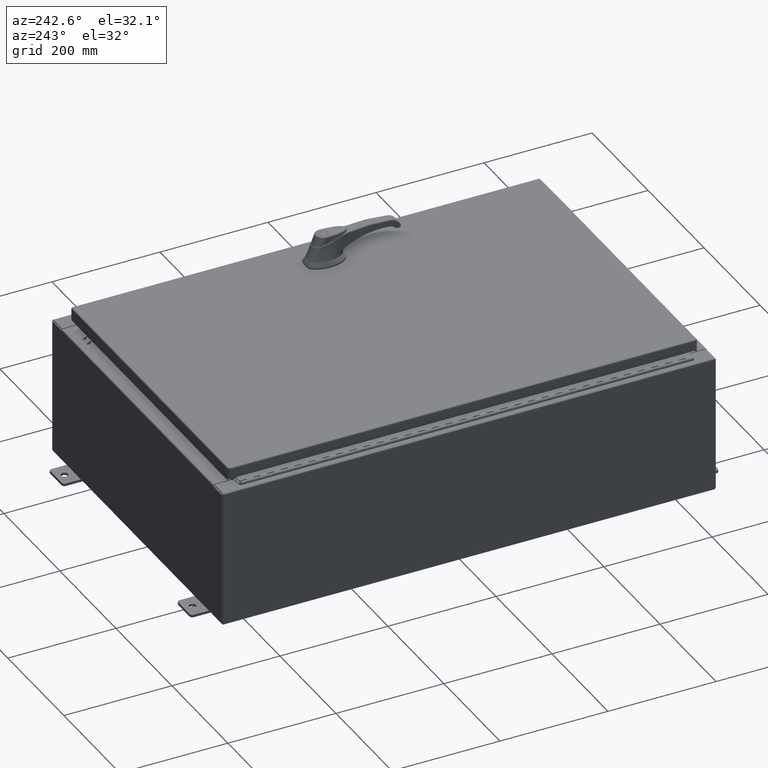
[diagram: clean part render]
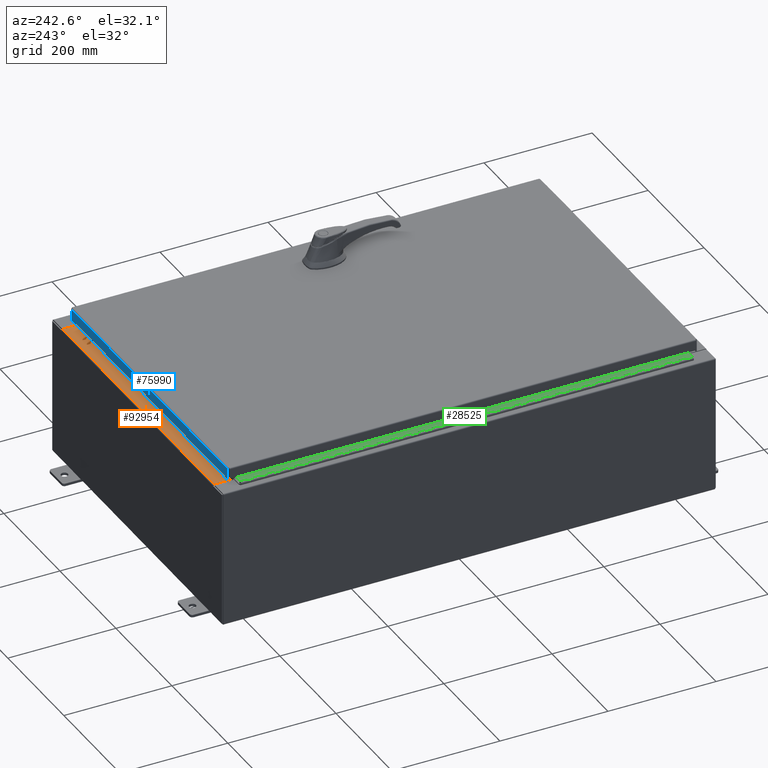
[diagram: same view with three faces highlighted in distinct colors, each labeled with its STEP entity id]
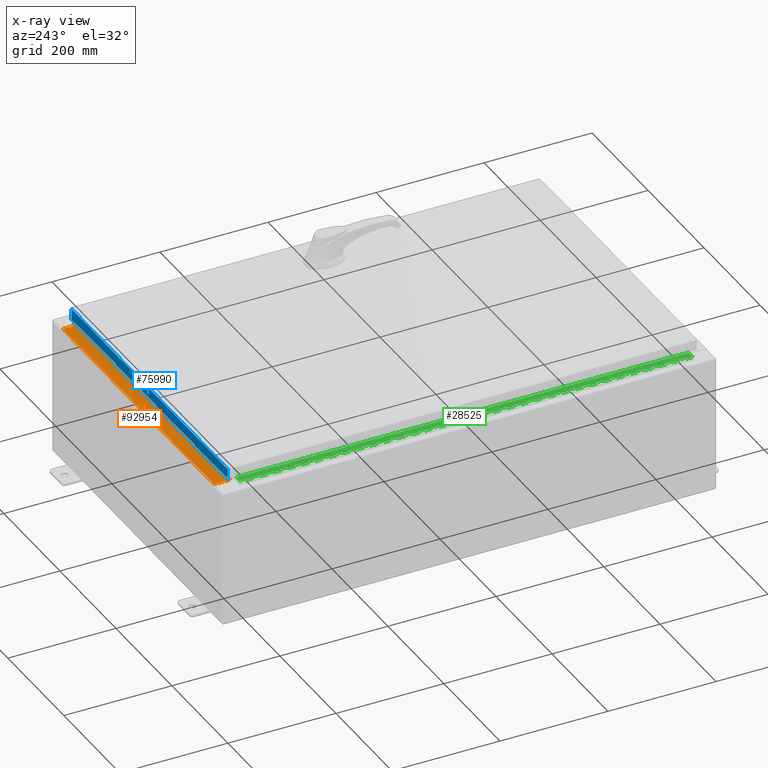
[diagram: x-ray of the same camera — body ghosted, the three highlighted faces saturated]
A machine part, auxiliary view with three faces highlighted in distinct colors.
The next image is the same camera in x-ray (body ghosted, the three faces saturated) — at least one of them is partly hidden behind the body in this view.
Their STEP definitions:

[orange] entity #92954 — the highlighted planar face has unit normal (0, 0, 1).
#204 = CARTESIAN_POINT ( 'NONE',  ( 4.504626575497439200E-018, -0.08770000000000081900, 5.000000000000000000 ) ) ;
#2488 = VECTOR ( 'NONE', #112991, 39.37007874015748100 ) ;
#2751 = CARTESIAN_POINT ( 'NONE',  ( 0.0000000000000000000, 1.782631094477737600E-014, 5.000000000000000000 ) ) ;
#5994 = CARTESIAN_POINT ( 'NONE',  ( 10.63720000000000200, -1.287299999999999900, 5.000000000000004400 ) ) ;
#7610 = LINE ( 'NONE', #37979, #103008 ) ;
#14990 = EDGE_LOOP ( 'NONE', ( #44890, #76264, #35298, #100804 ) ) ;
#20050 = VECTOR ( 'NONE', #57347, 39.37007874015748100 ) ;
#23061 = LINE ( 'NONE', #204, #20050 ) ;
#24008 = CARTESIAN_POINT ( 'NONE',  ( -10.63720000000000200, -0.08770000000000081900, 5.000000000000000000 ) ) ;
#24389 = EDGE_CURVE ( 'NONE', #107124, #48109, #27837, .T. ) ;
#27837 = LINE ( 'NONE', #84321, #2488 ) ;
#29978 = AXIS2_PLACEMENT_3D ( 'NONE', #2751, #31498, #98078 ) ;
#30525 = CARTESIAN_POINT ( 'NONE',  ( 10.63720000000000400, -0.08770000000000047200, 5.000000000000000000 ) ) ;
#31498 = DIRECTION ( 'NONE',  ( 0.0000000000000000000, 3.566381192773190000E-015, 1.000000000000000000 ) ) ;
#35298 = ORIENTED_EDGE ( 'NONE', *, *, #90427, .F. ) ;
#37928 = VERTEX_POINT ( 'NONE', #24008 ) ;
#37979 = CARTESIAN_POINT ( 'NONE',  ( 10.63720000000000200, -1.300299999999999800, 5.000000000000004400 ) ) ;
#44890 = ORIENTED_EDGE ( 'NONE', *, *, #121661, .F. ) ;
#48044 = LINE ( 'NONE', #111361, #95703 ) ;
#48109 = VERTEX_POINT ( 'NONE', #105886 ) ;
#57347 = DIRECTION ( 'NONE',  ( -1.000000000000000000, -5.136404305013091600E-017, 1.831837571187793700E-031 ) ) ;
#58064 = FACE_OUTER_BOUND ( 'NONE', #14990, .T. ) ;
#66757 = DIRECTION ( 'NONE',  ( -0.0000000000000000000, -1.000000000000000000, 3.566381192773190000E-015 ) ) ;
#69017 = PLANE ( 'NONE',  #29978 ) ;
#76264 = ORIENTED_EDGE ( 'NONE', *, *, #24389, .F. ) ;
#84321 = CARTESIAN_POINT ( 'NONE',  ( 10.63720000000000400, -1.287299999999999900, 5.000000000000003600 ) ) ;
#90083 = VERTEX_POINT ( 'NONE', #30525 ) ;
#90427 = EDGE_CURVE ( 'NONE', #90083, #107124, #7610, .T. ) ;
#92954 = ADVANCED_FACE ( 'NONE', ( #58064 ), #69017, .T. ) ;
#95703 = VECTOR ( 'NONE', #120881, 39.37007874015748100 ) ;
#98078 = DIRECTION ( 'NONE',  ( 0.0000000000000000000, -1.000000000000000000, 3.566381192773190000E-015 ) ) ;
#100804 = ORIENTED_EDGE ( 'NONE', *, *, #117150, .T. ) ;
#103008 = VECTOR ( 'NONE', #66757, 39.37007874015748100 ) ;
#105886 = CARTESIAN_POINT ( 'NONE',  ( -10.63720000000000200, -1.287299999999999200, 5.000000000000004400 ) ) ;
#107124 = VERTEX_POINT ( 'NONE', #5994 ) ;
#111361 = CARTESIAN_POINT ( 'NONE',  ( -10.63720000000000200, -0.07469999999999973900, 5.000000000000000000 ) ) ;
#112991 = DIRECTION ( 'NONE',  ( -1.000000000000000000, 0.0000000000000000000, 0.0000000000000000000 ) ) ;
#117150 = EDGE_CURVE ( 'NONE', #90083, #37928, #23061, .T. ) ;
#120881 = DIRECTION ( 'NONE',  ( -0.0000000000000000000, 1.000000000000000000, -3.566381192773190000E-015 ) ) ;
#121661 = EDGE_CURVE ( 'NONE', #48109, #37928, #48044, .T. ) ;

[blue] entity #75990 — the highlighted planar face has unit normal (0, -1, -0).
#5418 = VERTEX_POINT ( 'NONE', #36017 ) ;
#6694 = VERTEX_POINT ( 'NONE', #41386 ) ;
#14205 = PLANE ( 'NONE',  #111138 ) ;
#15786 = ORIENTED_EDGE ( 'NONE', *, *, #29675, .F. ) ;
#17861 = VECTOR ( 'NONE', #42982, 39.37007874015748100 ) ;
#23641 = VECTOR ( 'NONE', #113820, 39.37007874015748100 ) ;
#23785 = LINE ( 'NONE', #89341, #46106 ) ;
#23829 = DIRECTION ( 'NONE',  ( 3.122488847327582500E-031, -1.000000000000000000, -2.532419924601858200E-015 ) ) ;
#29675 = EDGE_CURVE ( 'NONE', #40532, #6694, #45953, .T. ) ;
#33388 = CARTESIAN_POINT ( 'NONE',  ( -11.07800000000000300, 17.09400000000000800, -0.9377000000000025300 ) ) ;
#36017 = CARTESIAN_POINT ( 'NONE',  ( -10.98915786437627200, 17.09400000000000800, -0.9377000000000025300 ) ) ;
#40532 = VERTEX_POINT ( 'NONE', #97868 ) ;
#41386 = CARTESIAN_POINT ( 'NONE',  ( -10.98915786437626900, 17.09400000000000800, -0.08770000000000008300 ) ) ;
#42085 = VECTOR ( 'NONE', #90798, 39.37007874015748100 ) ;
#42982 = DIRECTION ( 'NONE',  ( 1.000000000000000000, -4.379057701015054300E-047, 1.233005954894504400E-016 ) ) ;
#45953 = LINE ( 'NONE', #56910, #23641 ) ;
#46106 = VECTOR ( 'NONE', #79774, 39.37007874015748100 ) ;
#50601 = EDGE_CURVE ( 'NONE', #5418, #57276, #93895, .T. ) ;
#56094 = FACE_OUTER_BOUND ( 'NONE', #120733, .T. ) ;
#56910 = CARTESIAN_POINT ( 'NONE',  ( -11.07800000000000300, 17.09400000000000800, -0.08770000000000008300 ) ) ;
#57276 = VERTEX_POINT ( 'NONE', #114082 ) ;
#61187 = ORIENTED_EDGE ( 'NONE', *, *, #82857, .T. ) ;
#67449 = LINE ( 'NONE', #99932, #42085 ) ;
#75990 = ADVANCED_FACE ( 'NONE', ( #56094 ), #14205, .F. ) ;
#79774 = DIRECTION ( 'NONE',  ( 0.0000000000000000000, 2.532419924601858200E-015, -1.000000000000000000 ) ) ;
#80278 = ORIENTED_EDGE ( 'NONE', *, *, #50601, .F. ) ;
#80903 = CARTESIAN_POINT ( 'NONE',  ( -5.337582435621772200E-030, 17.09400000000000800, 4.354999984715576500E-014 ) ) ;
#82857 = EDGE_CURVE ( 'NONE', #40532, #57276, #23785, .T. ) ;
#89341 = CARTESIAN_POINT ( 'NONE',  ( 10.98915786437626500, 17.09400000000000800, 4.354999984715576500E-014 ) ) ;
#89517 = EDGE_CURVE ( 'NONE', #6694, #5418, #67449, .T. ) ;
#90462 = DIRECTION ( 'NONE',  ( 0.0000000000000000000, 2.532419924601858200E-015, -1.000000000000000000 ) ) ;
#90798 = DIRECTION ( 'NONE',  ( -0.0000000000000000000, 2.532419924601858200E-015, -1.000000000000000000 ) ) ;
#93895 = LINE ( 'NONE', #33388, #17861 ) ;
#97868 = CARTESIAN_POINT ( 'NONE',  ( 10.98915786437626500, 17.09400000000000800, -0.08770000000000008300 ) ) ;
#99932 = CARTESIAN_POINT ( 'NONE',  ( -10.98915786437627200, 17.09400000000000800, -0.07469999999999980800 ) ) ;
#103510 = ORIENTED_EDGE ( 'NONE', *, *, #89517, .F. ) ;
#111138 = AXIS2_PLACEMENT_3D ( 'NONE', #80903, #23829, #90462 ) ;
#113820 = DIRECTION ( 'NONE',  ( -1.000000000000000000, -3.122488847327583000E-031, -7.817847125977018100E-046 ) ) ;
#114082 = CARTESIAN_POINT ( 'NONE',  ( 10.98915786437626500, 17.09400000000000800, -0.9376999999999997600 ) ) ;
#120733 = EDGE_LOOP ( 'NONE', ( #15786, #61187, #80278, #103510 ) ) ;

[green] entity #28525 — the highlighted planar face has unit normal (-0, -0, 1).
#20 = VECTOR ( 'NONE', #79315, 39.37007874015748100 ) ;
#58 = VERTEX_POINT ( 'NONE', #52640 ) ;
#152 = VECTOR ( 'NONE', #53846, 39.37007874015748100 ) ;
#372 = EDGE_CURVE ( 'NONE', #9028, #90854, #110465, .T. ) ;
#612 = LINE ( 'NONE', #38517, #73677 ) ;
#667 = VERTEX_POINT ( 'NONE', #48041 ) ;
#764 = DIRECTION ( 'NONE',  ( 0.0000000000000000000, -0.0000000000000000000, -1.000000000000000000 ) ) ;
#792 = VECTOR ( 'NONE', #41964, 39.37007874015748100 ) ;
#888 = EDGE_CURVE ( 'NONE', #2419, #25877, #58363, .T. ) ;
#906 = DIRECTION ( 'NONE',  ( 0.0000000000000000000, 0.0000000000000000000, 1.000000000000000000 ) ) ;
#908 = VECTOR ( 'NONE', #4426, 39.37007874015748100 ) ;
#947 = VERTEX_POINT ( 'NONE', #34334 ) ;
#1050 = LINE ( 'NONE', #48933, #99383 ) ;
#1240 = VERTEX_POINT ( 'NONE', #78978 ) ;
#1270 = LINE ( 'NONE', #74495, #74347 ) ;
#1372 = DIRECTION ( 'NONE',  ( 0.0000000000000000000, -0.0000000000000000000, -1.000000000000000000 ) ) ;
#1599 = ORIENTED_EDGE ( 'NONE', *, *, #13574, .F. ) ;
#1627 = CARTESIAN_POINT ( 'NONE',  ( -0.6869999999999978300, 0.6754999999999996600, -21.50000000000000400 ) ) ;
#1723 = ORIENTED_EDGE ( 'NONE', *, *, #3752, .F. ) ;
#1830 = ORIENTED_EDGE ( 'NONE', *, *, #113396, .F. ) ;
#2142 = VECTOR ( 'NONE', #11112, 39.37007874015748100 ) ;
#2419 = VERTEX_POINT ( 'NONE', #82715 ) ;
#2579 = VECTOR ( 'NONE', #69760, 39.37007874015748100 ) ;
#2596 = ORIENTED_EDGE ( 'NONE', *, *, #69999, .F. ) ;
#2657 = VERTEX_POINT ( 'NONE', #120770 ) ;
#2971 = CARTESIAN_POINT ( 'NONE',  ( -0.6869999999999978300, 0.6754999999999996600, -10.50000000000000000 ) ) ;
#2997 = CARTESIAN_POINT ( 'NONE',  ( -0.6869999999999982800, 0.5504999999999997700, -23.00000000000000000 ) ) ;
#3007 = EDGE_CURVE ( 'NONE', #10308, #4956, #53573, .T. ) ;
#3092 = CARTESIAN_POINT ( 'NONE',  ( -0.6869999999999982800, 0.5504999999999997700, -8.500000000000000000 ) ) ;
#3236 = VECTOR ( 'NONE', #21789, 39.37007874015748100 ) ;
#3277 = VERTEX_POINT ( 'NONE', #93511 ) ;
#3308 = DIRECTION ( 'NONE',  ( -3.389037039080723100E-015, -1.000000000000000000, 0.0000000000000000000 ) ) ;
#3461 = CARTESIAN_POINT ( 'NONE',  ( -0.6869999999999973900, 0.8004999999999995500, -12.99999999999999800 ) ) ;
#3508 = VERTEX_POINT ( 'NONE', #20429 ) ;
#3586 = DIRECTION ( 'NONE',  ( -3.389037039080723100E-015, -1.000000000000000000, 0.0000000000000000000 ) ) ;
#3752 = EDGE_CURVE ( 'NONE', #57399, #99404, #68340, .T. ) ;
#3761 = LINE ( 'NONE', #60692, #57514 ) ;
#4018 = CARTESIAN_POINT ( 'NONE',  ( -0.6869999999999978300, 0.6754999999999996600, -20.50000000000000400 ) ) ;
#4145 = ORIENTED_EDGE ( 'NONE', *, *, #112986, .F. ) ;
#4285 = CARTESIAN_POINT ( 'NONE',  ( -0.6869999999999973900, 0.8004999999999995500, -27.00000000000000000 ) ) ;
#4426 = DIRECTION ( 'NONE',  ( -3.389037039080723100E-015, -1.000000000000000000, 0.0000000000000000000 ) ) ;
#4471 = CARTESIAN_POINT ( 'NONE',  ( -0.6869999999999973900, 0.8004999999999995500, -14.99999999999999800 ) ) ;
#4652 = DIRECTION ( 'NONE',  ( -3.389037039080723100E-015, -1.000000000000000000, 0.0000000000000000000 ) ) ;
#4668 = CARTESIAN_POINT ( 'NONE',  ( -0.6869999999999982800, 0.5504999999999997700, -12.99999999999999800 ) ) ;
#4708 = VERTEX_POINT ( 'NONE', #66779 ) ;
#4746 = VECTOR ( 'NONE', #53234, 39.37007874015748100 ) ;
#4749 = EDGE_CURVE ( 'NONE', #14141, #50095, #8513, .T. ) ;
#4759 = VECTOR ( 'NONE', #40496, 39.37007874015748100 ) ;
#4834 = EDGE_CURVE ( 'NONE', #44174, #10029, #75643, .T. ) ;
#4956 = VERTEX_POINT ( 'NONE', #43016 ) ;
#5150 = LINE ( 'NONE', #71384, #100535 ) ;
#5177 = DIRECTION ( 'NONE',  ( 0.0000000000000000000, -0.0000000000000000000, -1.000000000000000000 ) ) ;
#5294 = EDGE_CURVE ( 'NONE', #667, #2657, #20376, .T. ) ;
#5346 = VECTOR ( 'NONE', #5177, 39.37007874015748100 ) ;
#5352 = EDGE_CURVE ( 'NONE', #20388, #80613, #68110, .T. ) ;
#5412 = VERTEX_POINT ( 'NONE', #78996 ) ;
#5618 = LINE ( 'NONE', #51583, #30955 ) ;
#5652 = LINE ( 'NONE', #69971, #30994 ) ;
#5688 = DIRECTION ( 'NONE',  ( -3.389037039080723100E-015, -1.000000000000000000, 0.0000000000000000000 ) ) ;
#5754 = VERTEX_POINT ( 'NONE', #11471 ) ;
#6101 = EDGE_CURVE ( 'NONE', #947, #22018, #70996, .T. ) ;
#6190 = EDGE_CURVE ( 'NONE', #5754, #45171, #67985, .T. ) ;
#6285 = EDGE_CURVE ( 'NONE', #98011, #75567, #36646, .T. ) ;
#6358 = EDGE_CURVE ( 'NONE', #60055, #21467, #33667, .T. ) ;
#6533 = VECTOR ( 'NONE', #106904, 39.37007874015748100 ) ;
#6563 = VECTOR ( 'NONE', #40913, 39.37007874015748100 ) ;
#6572 = CARTESIAN_POINT ( 'NONE',  ( -0.6869999999999973900, 0.8004999999999995500, -4.000000000000000000 ) ) ;
#6639 = CARTESIAN_POINT ( 'NONE',  ( -0.6869999999999978300, 0.6754999999999996600, -26.00000000000000000 ) ) ;
#6763 = LINE ( 'NONE', #83653, #105146 ) ;
#6799 = DIRECTION ( 'NONE',  ( 0.0000000000000000000, 0.0000000000000000000, 1.000000000000000000 ) ) ;
#6847 = VECTOR ( 'NONE', #17516, 39.37007874015748100 ) ;
#6909 = EDGE_CURVE ( 'NONE', #116958, #76226, #26155, .T. ) ;
#6913 = CARTESIAN_POINT ( 'NONE',  ( -0.6869999999999982800, 0.5504999999999997700, -24.50000000000000000 ) ) ;
#6986 = ORIENTED_EDGE ( 'NONE', *, *, #47718, .F. ) ;
#7035 = VECTOR ( 'NONE', #55730, 39.37007874015748100 ) ;
#7515 = LINE ( 'NONE', #96025, #102909 ) ;
#7609 = VECTOR ( 'NONE', #42097, 39.37007874015748100 ) ;
#7684 = ORIENTED_EDGE ( 'NONE', *, *, #92204, .F. ) ;
#7820 = DIRECTION ( 'NONE',  ( 0.0000000000000000000, 0.0000000000000000000, 1.000000000000000000 ) ) ;
#8023 = CARTESIAN_POINT ( 'NONE',  ( -0.6869999999999973900, 0.8004999999999995500, -7.000000000000000000 ) ) ;
#8190 = DIRECTION ( 'NONE',  ( 0.0000000000000000000, 0.0000000000000000000, 1.000000000000000000 ) ) ;
#8271 = VECTOR ( 'NONE', #118304, 39.37007874015748100 ) ;
#8361 = DIRECTION ( 'NONE',  ( 0.0000000000000000000, 0.0000000000000000000, 1.000000000000000000 ) ) ;
#8419 = CARTESIAN_POINT ( 'NONE',  ( -0.6869999999999982800, 0.5504999999999997700, -29.99999999999999600 ) ) ;
#8513 = LINE ( 'NONE', #19106, #106895 ) ;
#8640 = VECTOR ( 'NONE', #59908, 39.37007874015748100 ) ;
#8685 = ORIENTED_EDGE ( 'NONE', *, *, #96463, .F. ) ;
#8755 = LINE ( 'NONE', #28584, #107145 ) ;
#8896 = ORIENTED_EDGE ( 'NONE', *, *, #75933, .F. ) ;
#9028 = VERTEX_POINT ( 'NONE', #59489 ) ;
#9156 = EDGE_CURVE ( 'NONE', #18005, #25786, #30055, .T. ) ;
#9204 = ORIENTED_EDGE ( 'NONE', *, *, #66185, .F. ) ;
#9329 = CARTESIAN_POINT ( 'NONE',  ( -0.6869999999999978300, 0.6754999999999996600, -23.50000000000000000 ) ) ;
#9493 = CARTESIAN_POINT ( 'NONE',  ( -0.6869999999999973900, 0.8004999999999995500, -29.99999999999999600 ) ) ;
#9627 = CARTESIAN_POINT ( 'NONE',  ( -0.6869999999999982800, 0.5504999999999997700, -30.50000000000000400 ) ) ;
#9997 = DIRECTION ( 'NONE',  ( 0.0000000000000000000, 0.0000000000000000000, 1.000000000000000000 ) ) ;
#10029 = VERTEX_POINT ( 'NONE', #8419 ) ;
#10070 = EDGE_CURVE ( 'NONE', #46825, #13707, #98689, .T. ) ;
#10189 = VECTOR ( 'NONE', #6799, 39.37007874015748100 ) ;
#10237 = LINE ( 'NONE', #70433, #61089 ) ;
#10293 = CARTESIAN_POINT ( 'NONE',  ( -0.6869999999999982800, 0.5504999999999997700, -0.5000000000000000000 ) ) ;
#10308 = VERTEX_POINT ( 'NONE', #1627 ) ;
#10439 = DIRECTION ( 'NONE',  ( -3.389037039080723100E-015, -1.000000000000000000, 0.0000000000000000000 ) ) ;
#10617 = EDGE_CURVE ( 'NONE', #98977, #28183, #12154, .T. ) ;
#10858 = VERTEX_POINT ( 'NONE', #121810 ) ;
#11090 = EDGE_CURVE ( 'NONE', #85375, #27228, #32985, .T. ) ;
#11110 = VECTOR ( 'NONE', #28970, 39.37007874015748100 ) ;
#11112 = DIRECTION ( 'NONE',  ( 0.0000000000000000000, 0.0000000000000000000, 1.000000000000000000 ) ) ;
#11259 = VECTOR ( 'NONE', #69903, 39.37007874015748100 ) ;
#11295 = ORIENTED_EDGE ( 'NONE', *, *, #114714, .F. ) ;
#11418 = VERTEX_POINT ( 'NONE', #97289 ) ;
#11471 = CARTESIAN_POINT ( 'NONE',  ( -0.6869999999999978300, 0.6754999999999996600, -3.500000000000000000 ) ) ;
#11720 = LINE ( 'NONE', #21363, #87778 ) ;
#11793 = VECTOR ( 'NONE', #67220, 39.37007874015748100 ) ;
#11856 = VERTEX_POINT ( 'NONE', #15383 ) ;
#11882 = VECTOR ( 'NONE', #47594, 39.37007874015748100 ) ;
#11943 = VERTEX_POINT ( 'NONE', #14580 ) ;
#12054 = VERTEX_POINT ( 'NONE', #37075 ) ;
#12154 = LINE ( 'NONE', #12688, #110505 ) ;
#12155 = VECTOR ( 'NONE', #83936, 39.37007874015748100 ) ;
#12368 = VERTEX_POINT ( 'NONE', #83348 ) ;
#12492 = VECTOR ( 'NONE', #115364, 39.37007874015748100 ) ;
#12630 = DIRECTION ( 'NONE',  ( 0.0000000000000000000, 0.0000000000000000000, 1.000000000000000000 ) ) ;
#12688 = CARTESIAN_POINT ( 'NONE',  ( -0.6869999999999973900, 0.8004999999999995500, -10.50000000000000000 ) ) ;
#13070 = VERTEX_POINT ( 'NONE', #39613 ) ;
#13174 = DIRECTION ( 'NONE',  ( 3.389037039080723100E-015, 1.000000000000000000, -0.0000000000000000000 ) ) ;
#13260 = CARTESIAN_POINT ( 'NONE',  ( -0.6869999999999973900, 0.8004999999999995500, -17.00000000000000000 ) ) ;
#13284 = DIRECTION ( 'NONE',  ( 3.389037039080723100E-015, 1.000000000000000000, -0.0000000000000000000 ) ) ;
#13301 = CARTESIAN_POINT ( 'NONE',  ( -0.6869999999999982800, 0.5504999999999997700, -14.49999999999999800 ) ) ;
#13372 = EDGE_CURVE ( 'NONE', #22018, #46825, #53631, .T. ) ;
#13398 = ORIENTED_EDGE ( 'NONE', *, *, #93722, .T. ) ;
#13574 = EDGE_CURVE ( 'NONE', #48218, #22050, #64031, .T. ) ;
#13598 = DIRECTION ( 'NONE',  ( 0.0000000000000000000, -0.0000000000000000000, -1.000000000000000000 ) ) ;
#13707 = VERTEX_POINT ( 'NONE', #113589 ) ;
#14029 = DIRECTION ( 'NONE',  ( 3.389037039080723100E-015, 1.000000000000000000, -0.0000000000000000000 ) ) ;
#14135 = LINE ( 'NONE', #95619, #11110 ) ;
#14141 = VERTEX_POINT ( 'NONE', #9329 ) ;
#14214 = DIRECTION ( 'NONE',  ( 0.0000000000000000000, -0.0000000000000000000, -1.000000000000000000 ) ) ;
#14475 = EDGE_CURVE ( 'NONE', #45996, #84899, #86179, .T. ) ;
#14500 = LINE ( 'NONE', #58068, #42855 ) ;
#14529 = VERTEX_POINT ( 'NONE', #100066 ) ;
#14580 = CARTESIAN_POINT ( 'NONE',  ( -0.6869999999999982800, 0.5504999999999997700, -11.00000000000000000 ) ) ;
#14591 = CARTESIAN_POINT ( 'NONE',  ( -0.6869999999999982800, 0.5504999999999997700, -28.50000000000000000 ) ) ;
#14605 = ORIENTED_EDGE ( 'NONE', *, *, #90156, .T. ) ;
#14606 = CARTESIAN_POINT ( 'NONE',  ( -0.6869999999999982800, 0.5504999999999997700, -23.50000000000000000 ) ) ;
#14784 = EDGE_CURVE ( 'NONE', #13070, #94631, #114200, .T. ) ;
#14800 = EDGE_CURVE ( 'NONE', #101329, #81750, #111229, .T. ) ;
#15036 = EDGE_CURVE ( 'NONE', #123074, #92126, #96295, .T. ) ;
#15086 = DIRECTION ( 'NONE',  ( 0.0000000000000000000, 0.0000000000000000000, 1.000000000000000000 ) ) ;
#15146 = VECTOR ( 'NONE', #3308, 39.37007874015748100 ) ;
#15161 = VERTEX_POINT ( 'NONE', #94885 ) ;
#15256 = VERTEX_POINT ( 'NONE', #34850 ) ;
#15292 = VECTOR ( 'NONE', #81084, 39.37007874015748100 ) ;
#15383 = CARTESIAN_POINT ( 'NONE',  ( -0.6869999999999982800, 0.5504999999999997700, -25.50000000000000400 ) ) ;
#15423 = EDGE_CURVE ( 'NONE', #15256, #11418, #78422, .T. ) ;
#15741 = CARTESIAN_POINT ( 'NONE',  ( -0.6869999999999978300, 0.6754999999999996600, -17.00000000000000000 ) ) ;
#15785 = EDGE_CURVE ( 'NONE', #92809, #117074, #82876, .T. ) ;
#15963 = EDGE_CURVE ( 'NONE', #4708, #68581, #64993, .T. ) ;
#16147 = VECTOR ( 'NONE', #42610, 39.37007874015748100 ) ;
#16191 = VERTEX_POINT ( 'NONE', #55839 ) ;
#16384 = LINE ( 'NONE', #87861, #80462 ) ;
#16507 = LINE ( 'NONE', #21067, #64276 ) ;
#16852 = CARTESIAN_POINT ( 'NONE',  ( -0.6869999999999973900, 0.8004999999999995500, -2.999999999999999600 ) ) ;
#16969 = EDGE_CURVE ( 'NONE', #30500, #27467, #55924, .T. ) ;
#17033 = EDGE_CURVE ( 'NONE', #1240, #12054, #5150, .T. ) ;
#17283 = VECTOR ( 'NONE', #29740, 39.37007874015748100 ) ;
#17425 = EDGE_CURVE ( 'NONE', #48427, #88795, #60369, .T. ) ;
#17516 = DIRECTION ( 'NONE',  ( -3.389037039080723100E-015, -1.000000000000000000, 0.0000000000000000000 ) ) ;
#17546 = LINE ( 'NONE', #6572, #39880 ) ;
#17644 = VECTOR ( 'NONE', #48976, 39.37007874015748100 ) ;
#17698 = ORIENTED_EDGE ( 'NONE', *, *, #106383, .F. ) ;
#17732 = DIRECTION ( 'NONE',  ( -3.389037039080723100E-015, -1.000000000000000000, 0.0000000000000000000 ) ) ;
#17825 = VECTOR ( 'NONE', #99855, 39.37007874015748100 ) ;
#17935 = CARTESIAN_POINT ( 'NONE',  ( -0.6869999999999978300, 0.6754999999999996600, -14.00000000000000000 ) ) ;
#18005 = VERTEX_POINT ( 'NONE', #33670 ) ;
#18147 = LINE ( 'NONE', #117320, #15146 ) ;
#18514 = DIRECTION ( 'NONE',  ( -3.389037039080723100E-015, -1.000000000000000000, 0.0000000000000000000 ) ) ;
#18520 = CARTESIAN_POINT ( 'NONE',  ( -0.6869999999999973900, 0.8004999999999995500, -14.00000000000000000 ) ) ;
#18725 = ORIENTED_EDGE ( 'NONE', *, *, #888, .F. ) ;
#18854 = CARTESIAN_POINT ( 'NONE',  ( -0.6869999999999982800, 0.5504999999999997700, -26.50000000000000400 ) ) ;
#18869 = LINE ( 'NONE', #57729, #41199 ) ;
#18915 = LINE ( 'NONE', #40483, #114208 ) ;
#18984 = VECTOR ( 'NONE', #5688, 39.37007874015748100 ) ;
#19056 = ORIENTED_EDGE ( 'NONE', *, *, #44877, .F. ) ;
#19106 = CARTESIAN_POINT ( 'NONE',  ( -0.6869999999999978300, 0.6754999999999996600, -33.00000000000000000 ) ) ;
#19155 = EDGE_CURVE ( 'NONE', #25897, #76194, #60146, .T. ) ;
#19282 = CARTESIAN_POINT ( 'NONE',  ( -0.6869999999999973900, 0.8004999999999995500, -22.00000000000000000 ) ) ;
#19418 = ORIENTED_EDGE ( 'NONE', *, *, #56015, .F. ) ;
#19433 = CARTESIAN_POINT ( 'NONE',  ( -0.6869999999999978300, 0.6754999999999996600, -7.000000000000000000 ) ) ;
#20376 = LINE ( 'NONE', #44664, #121598 ) ;
#20388 = VERTEX_POINT ( 'NONE', #40914 ) ;
#20419 = VECTOR ( 'NONE', #44843, 39.37007874015748100 ) ;
#20429 = CARTESIAN_POINT ( 'NONE',  ( -0.6869999999999978300, 0.6754999999999996600, -13.50000000000000000 ) ) ;
#20449 = CARTESIAN_POINT ( 'NONE',  ( -0.6869999999999982800, 0.5504999999999997700, -4.500000000000000000 ) ) ;
#20630 = LINE ( 'NONE', #48025, #115914 ) ;
#20814 = DIRECTION ( 'NONE',  ( -3.389037039080723100E-015, -1.000000000000000000, 0.0000000000000000000 ) ) ;
#20950 = ORIENTED_EDGE ( 'NONE', *, *, #41873, .F. ) ;
#21029 = AXIS2_PLACEMENT_3D ( 'NONE', #59457, #116744, #59880 ) ;
#21067 = CARTESIAN_POINT ( 'NONE',  ( -0.6869999999999973900, 0.8004999999999995500, -4.500000000000000000 ) ) ;
#21363 = CARTESIAN_POINT ( 'NONE',  ( -0.6869999999999973900, 0.8004999999999995500, -0.5000000000000000000 ) ) ;
#21384 = CARTESIAN_POINT ( 'NONE',  ( -0.6869999999999982800, 0.5504999999999997700, -18.50000000000000000 ) ) ;
#21435 = DIRECTION ( 'NONE',  ( 3.389037039080723100E-015, 1.000000000000000000, -0.0000000000000000000 ) ) ;
#21438 = EDGE_CURVE ( 'NONE', #45171, #3277, #35717, .T. ) ;
#21467 = VERTEX_POINT ( 'NONE', #13301 ) ;
#21712 = VECTOR ( 'NONE', #70596, 39.37007874015748100 ) ;
#21789 = DIRECTION ( 'NONE',  ( 0.0000000000000000000, 0.0000000000000000000, 1.000000000000000000 ) ) ;
#21826 = VERTEX_POINT ( 'NONE', #106062 ) ;
#21976 = VERTEX_POINT ( 'NONE', #90005 ) ;
#22018 = VERTEX_POINT ( 'NONE', #109523 ) ;
#22050 = VERTEX_POINT ( 'NONE', #71718 ) ;
#22092 = CARTESIAN_POINT ( 'NONE',  ( -0.6869999999999973900, 0.8004999999999995500, -2.500000000000000000 ) ) ;
#22176 = LINE ( 'NONE', #40621, #44545 ) ;
#22231 = CARTESIAN_POINT ( 'NONE',  ( -0.6869999999999973900, 0.8004999999999995500, -19.00000000000000000 ) ) ;
#22353 = CARTESIAN_POINT ( 'NONE',  ( -0.6869999999999978300, 0.6754999999999996600, -19.00000000000000000 ) ) ;
#22615 = LINE ( 'NONE', #31372, #3236 ) ;
#22658 = CARTESIAN_POINT ( 'NONE',  ( -0.6869999999999978300, 0.6754999999999996600, -33.00000000000000000 ) ) ;
#22866 = ORIENTED_EDGE ( 'NONE', *, *, #89576, .T. ) ;
#22956 = DIRECTION ( 'NONE',  ( 0.0000000000000000000, -0.0000000000000000000, -1.000000000000000000 ) ) ;
#22981 = DIRECTION ( 'NONE',  ( 0.0000000000000000000, 0.0000000000000000000, 1.000000000000000000 ) ) ;
#23295 = VECTOR ( 'NONE', #26904, 39.37007874015748100 ) ;
#23346 = VECTOR ( 'NONE', #93286, 39.37007874015748100 ) ;
#23348 = EDGE_CURVE ( 'NONE', #87208, #33415, #74251, .T. ) ;
#23458 = EDGE_CURVE ( 'NONE', #15256, #36518, #68258, .T. ) ;
#23467 = EDGE_CURVE ( 'NONE', #3277, #76226, #17546, .T. ) ;
#23778 = VERTEX_POINT ( 'NONE', #95663 ) ;
#23866 = ORIENTED_EDGE ( 'NONE', *, *, #42988, .F. ) ;
#23869 = VECTOR ( 'NONE', #14214, 39.37007874015748100 ) ;
#23973 = ORIENTED_EDGE ( 'NONE', *, *, #15036, .F. ) ;
#24014 = CARTESIAN_POINT ( 'NONE',  ( -0.6869999999999978300, 0.6754999999999996600, -33.00000000000000000 ) ) ;
#24033 = ORIENTED_EDGE ( 'NONE', *, *, #9156, .F. ) ;
#24233 = ORIENTED_EDGE ( 'NONE', *, *, #116319, .T. ) ;
#24268 = VECTOR ( 'NONE', #60775, 39.37007874015748100 ) ;
#24272 = CARTESIAN_POINT ( 'NONE',  ( -0.6869999999999982800, 0.5504999999999997700, -7.000000000000000000 ) ) ;
#24335 = ORIENTED_EDGE ( 'NONE', *, *, #98933, .F. ) ;
#24434 = CARTESIAN_POINT ( 'NONE',  ( -0.6869999999999982800, 0.5504999999999997700, -26.00000000000000000 ) ) ;
#24436 = ORIENTED_EDGE ( 'NONE', *, *, #30708, .F. ) ;
#24632 = EDGE_CURVE ( 'NONE', #5754, #13707, #18869, .T. ) ;
#25101 = EDGE_CURVE ( 'NONE', #68233, #21826, #56131, .T. ) ;
#25120 = CARTESIAN_POINT ( 'NONE',  ( -0.6869999999999973900, 0.8004999999999995500, -8.500000000000000000 ) ) ;
#25194 = CARTESIAN_POINT ( 'NONE',  ( -0.6869999999999998300, 0.07549999999999991400, 0.0000000000000000000 ) ) ;
#25398 = EDGE_CURVE ( 'NONE', #30067, #35070, #66481, .T. ) ;
#25467 = CARTESIAN_POINT ( 'NONE',  ( -0.6869999999999978300, 0.6754999999999996600, -2.000000000000000000 ) ) ;
#25640 = CARTESIAN_POINT ( 'NONE',  ( -0.6869999999999982800, 0.5504999999999997700, -29.50000000000000000 ) ) ;
#25712 = CARTESIAN_POINT ( 'NONE',  ( -0.6869999999999973900, 0.8004999999999995500, -22.50000000000000000 ) ) ;
#25786 = VERTEX_POINT ( 'NONE', #2997 ) ;
#25826 = CARTESIAN_POINT ( 'NONE',  ( -0.6869999999999973900, 0.8004999999999995500, -9.000000000000000000 ) ) ;
#25877 = VERTEX_POINT ( 'NONE', #60999 ) ;
#25897 = VERTEX_POINT ( 'NONE', #70911 ) ;
#25979 = VERTEX_POINT ( 'NONE', #14606 ) ;
#26067 = LINE ( 'NONE', #65527, #35010 ) ;
#26155 = LINE ( 'NONE', #104768, #792 ) ;
#26198 = DIRECTION ( 'NONE',  ( -3.389037039080723100E-015, -1.000000000000000000, 0.0000000000000000000 ) ) ;
#26479 = DIRECTION ( 'NONE',  ( 0.0000000000000000000, -0.0000000000000000000, -1.000000000000000000 ) ) ;
#26770 = CARTESIAN_POINT ( 'NONE',  ( -0.6869999999999982800, 0.5504999999999997700, -33.00000000000000000 ) ) ;
#26904 = DIRECTION ( 'NONE',  ( 0.0000000000000000000, -0.0000000000000000000, -1.000000000000000000 ) ) ;
#26942 = ORIENTED_EDGE ( 'NONE', *, *, #46612, .F. ) ;
#26994 = ORIENTED_EDGE ( 'NONE', *, *, #89959, .F. ) ;
#27064 = ORIENTED_EDGE ( 'NONE', *, *, #61632, .F. ) ;
#27124 = EDGE_CURVE ( 'NONE', #123074, #35933, #75959, .T. ) ;
#27209 = VERTEX_POINT ( 'NONE', #96379 ) ;
#27228 = VERTEX_POINT ( 'NONE', #48530 ) ;
#27332 = DIRECTION ( 'NONE',  ( 0.0000000000000000000, 0.0000000000000000000, 1.000000000000000000 ) ) ;
#27467 = VERTEX_POINT ( 'NONE', #92218 ) ;
#27947 = LINE ( 'NONE', #88631, #72682 ) ;
#28183 = VERTEX_POINT ( 'NONE', #121351 ) ;
#28193 = VECTOR ( 'NONE', #32906, 39.37007874015748100 ) ;
#28238 = VECTOR ( 'NONE', #57814, 39.37007874015748100 ) ;
#28330 = LINE ( 'NONE', #107573, #20 ) ;
#28513 = ORIENTED_EDGE ( 'NONE', *, *, #32383, .F. ) ;
#28525 = ADVANCED_FACE ( 'NONE', ( #114608 ), #97621, .T. ) ;
#28584 = CARTESIAN_POINT ( 'NONE',  ( -0.6869999999999973900, 0.8004999999999995500, -10.00000000000000000 ) ) ;
#28628 = CARTESIAN_POINT ( 'NONE',  ( -0.6869999999999973900, 0.8004999999999995500, -21.50000000000000400 ) ) ;
#28970 = DIRECTION ( 'NONE',  ( 0.0000000000000000000, 0.0000000000000000000, 1.000000000000000000 ) ) ;
#29129 = CARTESIAN_POINT ( 'NONE',  ( -0.6869999999999982800, 0.5504999999999997700, -28.99999999999999600 ) ) ;
#29253 = EDGE_CURVE ( 'NONE', #69837, #27467, #22176, .T. ) ;
#29697 = CARTESIAN_POINT ( 'NONE',  ( -0.6869999999999973900, 0.8004999999999995500, -21.00000000000000000 ) ) ;
#29701 = CARTESIAN_POINT ( 'NONE',  ( -0.6869999999999973900, 0.8004999999999995500, -13.50000000000000000 ) ) ;
#29708 = CARTESIAN_POINT ( 'NONE',  ( -0.6869999999999982800, 0.5504999999999997700, -28.00000000000000000 ) ) ;
#29740 = DIRECTION ( 'NONE',  ( -3.389037039080723100E-015, -1.000000000000000000, 0.0000000000000000000 ) ) ;
#29766 = ORIENTED_EDGE ( 'NONE', *, *, #75490, .F. ) ;
#29805 = CARTESIAN_POINT ( 'NONE',  ( -0.6869999999999973900, 0.8004999999999995500, -26.00000000000000000 ) ) ;
#29925 = LINE ( 'NONE', #92487, #49311 ) ;
#30055 = LINE ( 'NONE', #78817, #4759 ) ;
#30067 = VERTEX_POINT ( 'NONE', #24272 ) ;
#30094 = EDGE_CURVE ( 'NONE', #68175, #117074, #117353, .T. ) ;
#30145 = ORIENTED_EDGE ( 'NONE', *, *, #45945, .T. ) ;
#30376 = CARTESIAN_POINT ( 'NONE',  ( -0.6869999999999973900, 0.8004999999999995500, -7.499999999999999100 ) ) ;
#30464 = VECTOR ( 'NONE', #70967, 39.37007874015748100 ) ;
#30500 = VERTEX_POINT ( 'NONE', #37054 ) ;
#30570 = ORIENTED_EDGE ( 'NONE', *, *, #66097, .F. ) ;
#30708 = EDGE_CURVE ( 'NONE', #92126, #54596, #87546, .T. ) ;
#30841 = CARTESIAN_POINT ( 'NONE',  ( -0.6869999999999978300, 0.6754999999999996600, -33.00000000000000000 ) ) ;
#30885 = VERTEX_POINT ( 'NONE', #44046 ) ;
#30901 = CARTESIAN_POINT ( 'NONE',  ( -0.6869999999999982800, 0.5504999999999997700, -9.000000000000000000 ) ) ;
#30920 = ORIENTED_EDGE ( 'NONE', *, *, #49160, .F. ) ;
#30955 = VECTOR ( 'NONE', #108576, 39.37007874015748100 ) ;
#30994 = VECTOR ( 'NONE', #60453, 39.37007874015748100 ) ;
#31156 = ORIENTED_EDGE ( 'NONE', *, *, #23348, .F. ) ;
#31372 = CARTESIAN_POINT ( 'NONE',  ( -0.6869999999999978300, 0.6754999999999996600, -33.00000000000000000 ) ) ;
#31502 = ORIENTED_EDGE ( 'NONE', *, *, #372, .T. ) ;
#31888 = LINE ( 'NONE', #59283, #57330 ) ;
#32189 = CARTESIAN_POINT ( 'NONE',  ( -0.6869999999999973900, 0.8004999999999995500, -24.50000000000000000 ) ) ;
#32249 = CARTESIAN_POINT ( 'NONE',  ( -0.6869999999999982800, 0.5504999999999997700, -17.50000000000000000 ) ) ;
#32383 = EDGE_CURVE ( 'NONE', #59672, #48562, #81379, .T. ) ;
#32470 = CARTESIAN_POINT ( 'NONE',  ( -0.6869999999999973900, 0.8004999999999995500, -9.500000000000000000 ) ) ;
#32746 = VECTOR ( 'NONE', #93207, 39.37007874015748100 ) ;
#32906 = DIRECTION ( 'NONE',  ( 0.0000000000000000000, -0.0000000000000000000, -1.000000000000000000 ) ) ;
#32929 = VECTOR ( 'NONE', #3586, 39.37007874015748100 ) ;
#32985 = LINE ( 'NONE', #55842, #7609 ) ;
#33291 = ORIENTED_EDGE ( 'NONE', *, *, #95914, .F. ) ;
#33340 = CARTESIAN_POINT ( 'NONE',  ( -0.6869999999999982800, 0.5504999999999997700, -2.000000000000000000 ) ) ;
#33415 = VERTEX_POINT ( 'NONE', #111494 ) ;
#33437 = CARTESIAN_POINT ( 'NONE',  ( -0.6869999999999978300, 0.6754999999999996600, -20.00000000000000000 ) ) ;
#33485 = LINE ( 'NONE', #10293, #81186 ) ;
#33666 = LINE ( 'NONE', #51767, #8271 ) ;
#33667 = LINE ( 'NONE', #96458, #109634 ) ;
#33670 = CARTESIAN_POINT ( 'NONE',  ( -0.6869999999999982800, 0.5504999999999997700, -22.50000000000000000 ) ) ;
#33911 = VECTOR ( 'NONE', #96930, 39.37007874015748100 ) ;
#34002 = ORIENTED_EDGE ( 'NONE', *, *, #14800, .F. ) ;
#34006 = CARTESIAN_POINT ( 'NONE',  ( -0.6869999999999973900, 0.8004999999999995500, -18.50000000000000000 ) ) ;
#34014 = LINE ( 'NONE', #13260, #75741 ) ;
#34038 = LINE ( 'NONE', #98062, #8640 ) ;
#34334 = CARTESIAN_POINT ( 'NONE',  ( -0.6869999999999978300, 0.6754999999999996600, -2.500000000000000000 ) ) ;
#34416 = VECTOR ( 'NONE', #1372, 39.37007874015748100 ) ;
#34775 = EDGE_CURVE ( 'NONE', #27209, #105850, #3761, .T. ) ;
#34815 = ORIENTED_EDGE ( 'NONE', *, *, #17033, .T. ) ;
#34850 = CARTESIAN_POINT ( 'NONE',  ( -0.6869999999999978300, 0.6754999999999996600, -26.50000000000000400 ) ) ;
#34944 = DIRECTION ( 'NONE',  ( 3.389037039080723100E-015, 1.000000000000000000, -0.0000000000000000000 ) ) ;
#34957 = CARTESIAN_POINT ( 'NONE',  ( -0.6869999999999978300, 0.6754999999999996600, -6.499999999999999100 ) ) ;
#35010 = VECTOR ( 'NONE', #8361, 39.37007874015748100 ) ;
#35070 = VERTEX_POINT ( 'NONE', #19433 ) ;
#35113 = EDGE_CURVE ( 'NONE', #14529, #75810, #14135, .T. ) ;
#35507 = VECTOR ( 'NONE', #78347, 39.37007874015748100 ) ;
#35717 = LINE ( 'NONE', #98680, #58155 ) ;
#35747 = LINE ( 'NONE', #102767, #32746 ) ;
#35808 = CARTESIAN_POINT ( 'NONE',  ( -0.6869999999999978300, 0.6754999999999996600, -22.00000000000000000 ) ) ;
#35933 = VERTEX_POINT ( 'NONE', #33437 ) ;
#36035 = CARTESIAN_POINT ( 'NONE',  ( -0.6869999999999982800, 0.5504999999999997700, -1.499999999999999800 ) ) ;
#36193 = EDGE_CURVE ( 'NONE', #37731, #75148, #72185, .T. ) ;
#36518 = VERTEX_POINT ( 'NONE', #6639 ) ;
#36646 = LINE ( 'NONE', #18520, #11259 ) ;
#36896 = CARTESIAN_POINT ( 'NONE',  ( -0.6869999999999973900, 0.8004999999999995500, -26.50000000000000400 ) ) ;
#37054 = CARTESIAN_POINT ( 'NONE',  ( -0.6869999999999982800, 0.5504999999999997700, -27.00000000000000000 ) ) ;
#37075 = CARTESIAN_POINT ( 'NONE',  ( -0.6869999999999978300, 0.6754999999999996600, -23.99999999999999600 ) ) ;
#37188 = LINE ( 'NONE', #19282, #11793 ) ;
#37271 = VERTEX_POINT ( 'NONE', #75836 ) ;
#37539 = VECTOR ( 'NONE', #26479, 39.37007874015748100 ) ;
#37696 = VECTOR ( 'NONE', #21435, 39.37007874015748100 ) ;
#37731 = VERTEX_POINT ( 'NONE', #34957 ) ;
#37843 = CARTESIAN_POINT ( 'NONE',  ( -0.6869999999999978300, 0.6754999999999996600, -31.50000000000000400 ) ) ;
#38032 = ORIENTED_EDGE ( 'NONE', *, *, #5294, .F. ) ;
#38159 = DIRECTION ( 'NONE',  ( 3.389037039080723100E-015, 1.000000000000000000, -0.0000000000000000000 ) ) ;
#38237 = CARTESIAN_POINT ( 'NONE',  ( -0.6869999999999978300, 0.6754999999999996600, -14.49999999999999800 ) ) ;
#38452 = EDGE_CURVE ( 'NONE', #83068, #94285, #80774, .T. ) ;
#38476 = LINE ( 'NONE', #30841, #35507 ) ;
#38498 = VECTOR ( 'NONE', #59304, 39.37007874015748100 ) ;
#38517 = CARTESIAN_POINT ( 'NONE',  ( -0.6869999999999978300, 0.6754999999999996600, -33.00000000000000000 ) ) ;
#38597 = VECTOR ( 'NONE', #111528, 39.37007874015748100 ) ;
#38671 = DIRECTION ( 'NONE',  ( 0.0000000000000000000, 0.0000000000000000000, 1.000000000000000000 ) ) ;
#38717 = LINE ( 'NONE', #30376, #83442 ) ;
#38838 = DIRECTION ( 'NONE',  ( -3.389037039080723100E-015, -1.000000000000000000, 0.0000000000000000000 ) ) ;
#39048 = VECTOR ( 'NONE', #88013, 39.37007874015748100 ) ;
#39218 = EDGE_CURVE ( 'NONE', #83068, #30885, #29925, .T. ) ;
#39337 = ORIENTED_EDGE ( 'NONE', *, *, #27124, .T. ) ;
#39613 = CARTESIAN_POINT ( 'NONE',  ( -0.6869999999999978300, 0.6754999999999996600, -30.50000000000000400 ) ) ;
#39880 = VECTOR ( 'NONE', #34944, 39.37007874015748100 ) ;
#40030 = EDGE_CURVE ( 'NONE', #116462, #92517, #93912, .T. ) ;
#40160 = CARTESIAN_POINT ( 'NONE',  ( -0.6869999999999978300, 0.6754999999999996600, -33.00000000000000000 ) ) ;
#40390 = DIRECTION ( 'NONE',  ( 0.0000000000000000000, -0.0000000000000000000, -1.000000000000000000 ) ) ;
#40465 = CARTESIAN_POINT ( 'NONE',  ( -0.6869999999999978300, 0.6754999999999996600, -33.00000000000000000 ) ) ;
#40483 = CARTESIAN_POINT ( 'NONE',  ( -0.6869999999999973900, 0.8004999999999995500, -20.00000000000000000 ) ) ;
#40496 = DIRECTION ( 'NONE',  ( 0.0000000000000000000, -0.0000000000000000000, -1.000000000000000000 ) ) ;
#40504 = LINE ( 'NONE', #29701, #12155 ) ;
#40621 = CARTESIAN_POINT ( 'NONE',  ( -0.6869999999999978300, 0.6754999999999996600, -33.00000000000000000 ) ) ;
#40855 = CARTESIAN_POINT ( 'NONE',  ( -0.6869999999999982800, 0.5504999999999997700, -27.50000000000000000 ) ) ;
#40913 = DIRECTION ( 'NONE',  ( 3.389037039080723100E-015, 1.000000000000000000, -0.0000000000000000000 ) ) ;
#40914 = CARTESIAN_POINT ( 'NONE',  ( -0.6869999999999978300, 0.6754999999999996600, -17.50000000000000000 ) ) ;
#41199 = VECTOR ( 'NONE', #95517, 39.37007874015748100 ) ;
#41601 = DIRECTION ( 'NONE',  ( 0.0000000000000000000, 0.0000000000000000000, 1.000000000000000000 ) ) ;
#41753 = EDGE_CURVE ( 'NONE', #59126, #90854, #1270, .T. ) ;
#41873 = EDGE_CURVE ( 'NONE', #123214, #36518, #43013, .T. ) ;
#41964 = DIRECTION ( 'NONE',  ( 0.0000000000000000000, 0.0000000000000000000, 1.000000000000000000 ) ) ;
#42057 = EDGE_CURVE ( 'NONE', #94377, #81750, #34038, .T. ) ;
#42059 = VECTOR ( 'NONE', #96310, 39.37007874015748100 ) ;
#42071 = DIRECTION ( 'NONE',  ( -3.389037039080723100E-015, -1.000000000000000000, 0.0000000000000000000 ) ) ;
#42097 = DIRECTION ( 'NONE',  ( 0.0000000000000000000, -0.0000000000000000000, -1.000000000000000000 ) ) ;
#42165 = CARTESIAN_POINT ( 'NONE',  ( -0.6869999999999982800, 0.5504999999999997700, -4.500000000000000000 ) ) ;
#42283 = VERTEX_POINT ( 'NONE', #25194 ) ;
#42301 = VECTOR ( 'NONE', #45383, 39.37007874015748100 ) ;
#42460 = CARTESIAN_POINT ( 'NONE',  ( -0.6869999999999973900, 0.8004999999999995500, -32.50000000000000000 ) ) ;
#42546 = LINE ( 'NONE', #87720, #115467 ) ;
#42610 = DIRECTION ( 'NONE',  ( 3.389037039080723100E-015, 1.000000000000000000, -0.0000000000000000000 ) ) ;
#42754 = VECTOR ( 'NONE', #84468, 39.37007874015748100 ) ;
#42855 = VECTOR ( 'NONE', #906, 39.37007874015748100 ) ;
#42918 = CARTESIAN_POINT ( 'NONE',  ( -0.6869999999999978300, 0.6754999999999996600, -28.99999999999999600 ) ) ;
#42988 = EDGE_CURVE ( 'NONE', #92517, #48218, #53349, .T. ) ;
#43013 = LINE ( 'NONE', #29805, #17644 ) ;
#43016 = CARTESIAN_POINT ( 'NONE',  ( -0.6869999999999982800, 0.5504999999999997700, -21.50000000000000400 ) ) ;
#43241 = VECTOR ( 'NONE', #91747, 39.37007874015748100 ) ;
#43425 = LINE ( 'NONE', #117667, #91097 ) ;
#43433 = DIRECTION ( 'NONE',  ( 3.389037039080723100E-015, 1.000000000000000000, -0.0000000000000000000 ) ) ;
#43504 = ORIENTED_EDGE ( 'NONE', *, *, #107414, .T. ) ;
#43509 = CARTESIAN_POINT ( 'NONE',  ( -0.6869999999999982800, 0.5504999999999997700, -20.00000000000000000 ) ) ;
#43524 = EDGE_CURVE ( 'NONE', #77269, #35070, #96359, .T. ) ;
#43823 = VECTOR ( 'NONE', #56804, 39.37007874015748100 ) ;
#43910 = ORIENTED_EDGE ( 'NONE', *, *, #104342, .F. ) ;
#44046 = CARTESIAN_POINT ( 'NONE',  ( -0.6869999999999978300, 0.6754999999999996600, -17.99999999999999600 ) ) ;
#44174 = VERTEX_POINT ( 'NONE', #66205 ) ;
#44226 = LINE ( 'NONE', #99375, #69568 ) ;
#44337 = LINE ( 'NONE', #62488, #18984 ) ;
#44440 = EDGE_CURVE ( 'NONE', #121482, #57399, #71375, .T. ) ;
#44545 = VECTOR ( 'NONE', #69384, 39.37007874015748100 ) ;
#44664 = CARTESIAN_POINT ( 'NONE',  ( -0.6869999999999973900, 0.8004999999999995500, -19.50000000000000000 ) ) ;
#44843 = DIRECTION ( 'NONE',  ( -3.389037039080723100E-015, -1.000000000000000000, 0.0000000000000000000 ) ) ;
#44877 = EDGE_CURVE ( 'NONE', #105850, #81903, #60931, .T. ) ;
#44949 = CARTESIAN_POINT ( 'NONE',  ( -0.6869999999999982800, 0.5504999999999997700, -8.000000000000000000 ) ) ;
#45171 = VERTEX_POINT ( 'NONE', #119676 ) ;
#45383 = DIRECTION ( 'NONE',  ( 3.389037039080723100E-015, 1.000000000000000000, -0.0000000000000000000 ) ) ;
#45491 = ORIENTED_EDGE ( 'NONE', *, *, #6101, .F. ) ;
#45531 = EDGE_CURVE ( 'NONE', #81903, #59686, #27947, .T. ) ;
#45553 = VECTOR ( 'NONE', #41601, 39.37007874015748100 ) ;
#45609 = EDGE_CURVE ( 'NONE', #9028, #75975, #44337, .T. ) ;
#45614 = VECTOR ( 'NONE', #53663, 39.37007874015748100 ) ;
#45945 = EDGE_CURVE ( 'NONE', #73179, #5412, #1050, .T. ) ;
#45996 = VERTEX_POINT ( 'NONE', #49787 ) ;
#46033 = CARTESIAN_POINT ( 'NONE',  ( -0.6869999999999982800, 0.5504999999999997700, -2.999999999999999600 ) ) ;
#46308 = VECTOR ( 'NONE', #92789, 39.37007874015748100 ) ;
#46471 = EDGE_CURVE ( 'NONE', #11856, #123214, #44226, .T. ) ;
#46533 = VERTEX_POINT ( 'NONE', #81099 ) ;
#46612 = EDGE_CURVE ( 'NONE', #25786, #50095, #60680, .T. ) ;
#46801 = EDGE_CURVE ( 'NONE', #2657, #110684, #48610, .T. ) ;
#46825 = VERTEX_POINT ( 'NONE', #46033 ) ;
#46950 = ORIENTED_EDGE ( 'NONE', *, *, #16969, .F. ) ;
#47014 = CARTESIAN_POINT ( 'NONE',  ( -0.6869999999999982800, 0.5504999999999997700, -18.50000000000000000 ) ) ;
#47210 = ORIENTED_EDGE ( 'NONE', *, *, #19155, .F. ) ;
#47594 = DIRECTION ( 'NONE',  ( 0.0000000000000000000, -0.0000000000000000000, -1.000000000000000000 ) ) ;
#47718 = EDGE_CURVE ( 'NONE', #47780, #61355, #121391, .T. ) ;
#47780 = VERTEX_POINT ( 'NONE', #61531 ) ;
#47821 = CARTESIAN_POINT ( 'NONE',  ( -0.6869999999999982800, 0.5504999999999997700, -11.99999999999999800 ) ) ;
#48014 = VERTEX_POINT ( 'NONE', #95078 ) ;
#48025 = CARTESIAN_POINT ( 'NONE',  ( -0.6869999999999973900, 0.8004999999999995500, -5.500000000000000000 ) ) ;
#48041 = CARTESIAN_POINT ( 'NONE',  ( -0.6869999999999978300, 0.6754999999999996600, -19.50000000000000000 ) ) ;
#48110 = DIRECTION ( 'NONE',  ( 0.0000000000000000000, 0.0000000000000000000, 1.000000000000000000 ) ) ;
#48174 = ORIENTED_EDGE ( 'NONE', *, *, #39218, .T. ) ;
#48218 = VERTEX_POINT ( 'NONE', #30901 ) ;
#48392 = CARTESIAN_POINT ( 'NONE',  ( -0.6869999999999982800, 0.5504999999999997700, -16.50000000000000000 ) ) ;
#48427 = VERTEX_POINT ( 'NONE', #4668 ) ;
#48530 = CARTESIAN_POINT ( 'NONE',  ( -0.6869999999999982800, 0.5504999999999997700, -16.00000000000000000 ) ) ;
#48556 = CARTESIAN_POINT ( 'NONE',  ( -0.6869999999999978300, 0.6754999999999996600, 0.0000000000000000000 ) ) ;
#48562 = VERTEX_POINT ( 'NONE', #25467 ) ;
#48610 = LINE ( 'NONE', #83955, #23295 ) ;
#48626 = ORIENTED_EDGE ( 'NONE', *, *, #65746, .T. ) ;
#48705 = LINE ( 'NONE', #89004, #93439 ) ;
#48844 = VECTOR ( 'NONE', #119433, 39.37007874015748100 ) ;
#48933 = CARTESIAN_POINT ( 'NONE',  ( -0.6869999999999978300, 0.6754999999999996600, -33.00000000000000000 ) ) ;
#48976 = DIRECTION ( 'NONE',  ( 3.389037039080723100E-015, 1.000000000000000000, -0.0000000000000000000 ) ) ;
#49085 = EDGE_CURVE ( 'NONE', #4956, #83079, #110852, .T. ) ;
#49104 = CARTESIAN_POINT ( 'NONE',  ( -0.6869999999999978300, 0.6754999999999996600, -28.00000000000000000 ) ) ;
#49160 = EDGE_CURVE ( 'NONE', #99698, #69053, #82603, .T. ) ;
#49289 = LINE ( 'NONE', #72206, #74696 ) ;
#49311 = VECTOR ( 'NONE', #64210, 39.37007874015748100 ) ;
#49466 = DIRECTION ( 'NONE',  ( 0.0000000000000000000, -0.0000000000000000000, -1.000000000000000000 ) ) ;
#49632 = ORIENTED_EDGE ( 'NONE', *, *, #35113, .T. ) ;
#49676 = CARTESIAN_POINT ( 'NONE',  ( -0.6869999999999978300, 0.6754999999999996600, -33.00000000000000000 ) ) ;
#49787 = CARTESIAN_POINT ( 'NONE',  ( -0.6869999999999982800, 0.5504999999999997700, -32.00000000000000000 ) ) ;
#49817 = EDGE_CURVE ( 'NONE', #10858, #84899, #49289, .T. ) ;
#50061 = LINE ( 'NONE', #22231, #21712 ) ;
#50086 = DIRECTION ( 'NONE',  ( 3.389037039080723100E-015, 1.000000000000000000, -0.0000000000000000000 ) ) ;
#50095 = VERTEX_POINT ( 'NONE', #122722 ) ;
#50226 = ORIENTED_EDGE ( 'NONE', *, *, #21438, .F. ) ;
#50554 = EDGE_CURVE ( 'NONE', #65980, #68175, #71584, .T. ) ;
#50671 = ORIENTED_EDGE ( 'NONE', *, *, #49817, .T. ) ;
#50863 = ORIENTED_EDGE ( 'NONE', *, *, #41753, .F. ) ;
#50894 = ORIENTED_EDGE ( 'NONE', *, *, #86751, .F. ) ;
#50908 = CARTESIAN_POINT ( 'NONE',  ( -0.6869999999999982800, 0.5504999999999997700, -31.50000000000000400 ) ) ;
#51119 = CARTESIAN_POINT ( 'NONE',  ( -0.6869999999999982800, 0.5504999999999997700, -5.500000000000000000 ) ) ;
#51125 = DIRECTION ( 'NONE',  ( 3.389037039080723100E-015, 1.000000000000000000, -0.0000000000000000000 ) ) ;
#51441 = DIRECTION ( 'NONE',  ( 0.0000000000000000000, -0.0000000000000000000, -1.000000000000000000 ) ) ;
#51572 = VECTOR ( 'NONE', #12630, 39.37007874015748100 ) ;
#51583 = CARTESIAN_POINT ( 'NONE',  ( -0.6869999999999982800, 0.5504999999999997700, -10.50000000000000000 ) ) ;
#51767 = CARTESIAN_POINT ( 'NONE',  ( -0.6869999999999982800, 0.5504999999999997700, -7.499999999999999100 ) ) ;
#51939 = ORIENTED_EDGE ( 'NONE', *, *, #98766, .F. ) ;
#52069 = DIRECTION ( 'NONE',  ( -3.389037039080723100E-015, -1.000000000000000000, 0.0000000000000000000 ) ) ;
#52132 = VERTEX_POINT ( 'NONE', #76484 ) ;
#52170 = LINE ( 'NONE', #42460, #99767 ) ;
#52327 = ORIENTED_EDGE ( 'NONE', *, *, #25398, .F. ) ;
#52532 = LINE ( 'NONE', #32189, #100125 ) ;
#52640 = CARTESIAN_POINT ( 'NONE',  ( -0.6869999999999982800, 0.5504999999999997700, -13.50000000000000000 ) ) ;
#52669 = DIRECTION ( 'NONE',  ( 0.0000000000000000000, 0.0000000000000000000, 1.000000000000000000 ) ) ;
#52817 = EDGE_CURVE ( 'NONE', #99698, #37271, #14500, .T. ) ;
#52910 = LINE ( 'NONE', #96903, #2142 ) ;
#52990 = CARTESIAN_POINT ( 'NONE',  ( -0.6869999999999973900, 0.8004999999999995500, -31.00000000000000000 ) ) ;
#53234 = DIRECTION ( 'NONE',  ( -3.389037039080723100E-015, -1.000000000000000000, 0.0000000000000000000 ) ) ;
#53322 = ORIENTED_EDGE ( 'NONE', *, *, #13372, .F. ) ;
#53349 = LINE ( 'NONE', #3092, #2579 ) ;
#53566 = DIRECTION ( 'NONE',  ( 3.369016658928398200E-015, 1.000000000000000000, 0.0000000000000000000 ) ) ;
#53573 = LINE ( 'NONE', #28628, #104136 ) ;
#53631 = LINE ( 'NONE', #80420, #28193 ) ;
#53663 = DIRECTION ( 'NONE',  ( -3.389037039080723100E-015, -1.000000000000000000, 0.0000000000000000000 ) ) ;
#53801 = EDGE_CURVE ( 'NONE', #46533, #111124, #75518, .T. ) ;
#53844 = ORIENTED_EDGE ( 'NONE', *, *, #56915, .T. ) ;
#53846 = DIRECTION ( 'NONE',  ( -3.389037039080723100E-015, -1.000000000000000000, 0.0000000000000000000 ) ) ;
#53893 = LINE ( 'NONE', #82123, #152 ) ;
#54408 = CARTESIAN_POINT ( 'NONE',  ( -0.6869999999999978300, 0.6754999999999996600, -21.00000000000000000 ) ) ;
#54596 = VERTEX_POINT ( 'NONE', #97416 ) ;
#55091 = ORIENTED_EDGE ( 'NONE', *, *, #5352, .T. ) ;
#55206 = ORIENTED_EDGE ( 'NONE', *, *, #46471, .F. ) ;
#55366 = CARTESIAN_POINT ( 'NONE',  ( -0.6869999999999978300, 0.6754999999999996600, -1.000000000000000000 ) ) ;
#55730 = DIRECTION ( 'NONE',  ( -3.389037039080723100E-015, -1.000000000000000000, 0.0000000000000000000 ) ) ;
#55839 = CARTESIAN_POINT ( 'NONE',  ( -0.6869999999999982800, 0.5504999999999997700, -23.99999999999999600 ) ) ;
#55842 = CARTESIAN_POINT ( 'NONE',  ( -0.6869999999999982800, 0.5504999999999997700, -15.50000000000000000 ) ) ;
#55924 = LINE ( 'NONE', #4285, #30464 ) ;
#55939 = DIRECTION ( 'NONE',  ( 0.0000000000000000000, -0.0000000000000000000, -1.000000000000000000 ) ) ;
#56015 = EDGE_CURVE ( 'NONE', #73179, #11856, #53893, .T. ) ;
#56131 = LINE ( 'NONE', #98889, #5346 ) ;
#56257 = ORIENTED_EDGE ( 'NONE', *, *, #72461, .F. ) ;
#56276 = ORIENTED_EDGE ( 'NONE', *, *, #91085, .F. ) ;
#56283 = ORIENTED_EDGE ( 'NONE', *, *, #46801, .F. ) ;
#56365 = EDGE_CURVE ( 'NONE', #98977, #99469, #7515, .T. ) ;
#56406 = LINE ( 'NONE', #111556, #103979 ) ;
#56516 = CARTESIAN_POINT ( 'NONE',  ( -0.6869999999999978300, 0.6754999999999996600, -5.000000000000000000 ) ) ;
#56703 = DIRECTION ( 'NONE',  ( 0.0000000000000000000, -0.0000000000000000000, -1.000000000000000000 ) ) ;
#56785 = ORIENTED_EDGE ( 'NONE', *, *, #23467, .F. ) ;
#56804 = DIRECTION ( 'NONE',  ( -3.389037039080723100E-015, -1.000000000000000000, 0.0000000000000000000 ) ) ;
#56862 = VECTOR ( 'NONE', #56703, 39.37007874015748100 ) ;
#56890 = CARTESIAN_POINT ( 'NONE',  ( -0.6869999999999973900, 0.8004999999999995500, -11.50000000000000000 ) ) ;
#56915 = EDGE_CURVE ( 'NONE', #60055, #75567, #28330, .T. ) ;
#57330 = VECTOR ( 'NONE', #116176, 39.37007874015748100 ) ;
#57399 = VERTEX_POINT ( 'NONE', #106186 ) ;
#57514 = VECTOR ( 'NONE', #70221, 39.37007874015748100 ) ;
#57648 = LINE ( 'NONE', #65073, #6847 ) ;
#57729 = CARTESIAN_POINT ( 'NONE',  ( -0.6869999999999978300, 0.6754999999999996600, -33.00000000000000000 ) ) ;
#57814 = DIRECTION ( 'NONE',  ( 0.0000000000000000000, 0.0000000000000000000, 1.000000000000000000 ) ) ;
#57936 = CARTESIAN_POINT ( 'NONE',  ( -0.6869999999999982800, 0.5504999999999997700, -14.00000000000000000 ) ) ;
#57996 = DIRECTION ( 'NONE',  ( -3.389037039080723100E-015, -1.000000000000000000, 0.0000000000000000000 ) ) ;
#58023 = LINE ( 'NONE', #120437, #10189 ) ;
#58068 = CARTESIAN_POINT ( 'NONE',  ( -0.6869999999999978300, 0.6754999999999996600, -33.00000000000000000 ) ) ;
#58155 = VECTOR ( 'NONE', #89146, 39.37007874015748100 ) ;
#58289 = DIRECTION ( 'NONE',  ( 0.0000000000000000000, -0.0000000000000000000, -1.000000000000000000 ) ) ;
#58349 = ORIENTED_EDGE ( 'NONE', *, *, #11090, .F. ) ;
#58363 = LINE ( 'NONE', #56890, #32929 ) ;
#58513 = LINE ( 'NONE', #21384, #39048 ) ;
#58628 = DIRECTION ( 'NONE',  ( 0.0000000000000000000, 0.0000000000000000000, 1.000000000000000000 ) ) ;
#58681 = DIRECTION ( 'NONE',  ( 3.369016658928398200E-015, 1.000000000000000000, 0.0000000000000000000 ) ) ;
#58831 = CARTESIAN_POINT ( 'NONE',  ( -0.6869999999999982800, 0.5504999999999997700, -17.99999999999999600 ) ) ;
#59064 = VECTOR ( 'NONE', #38159, 39.37007874015748100 ) ;
#59126 = VERTEX_POINT ( 'NONE', #86564 ) ;
#59230 = ORIENTED_EDGE ( 'NONE', *, *, #70387, .F. ) ;
#59283 = CARTESIAN_POINT ( 'NONE',  ( -0.6869999999999982800, 0.5504999999999997700, -14.49999999999999800 ) ) ;
#59304 = DIRECTION ( 'NONE',  ( 0.0000000000000000000, 0.0000000000000000000, 1.000000000000000000 ) ) ;
#59317 = CARTESIAN_POINT ( 'NONE',  ( -0.6869999999999978300, 0.6754999999999996600, -27.50000000000000000 ) ) ;
#59347 = CARTESIAN_POINT ( 'NONE',  ( -0.6869999999999978300, 0.6754999999999996600, -33.00000000000000000 ) ) ;
#59445 = VECTOR ( 'NONE', #79298, 39.37007874015748100 ) ;
#59457 = CARTESIAN_POINT ( 'NONE',  ( -0.6870000000000022800, -0.6245000000000003900, -33.00000000000000000 ) ) ;
#59477 = ORIENTED_EDGE ( 'NONE', *, *, #106735, .F. ) ;
#59484 = ORIENTED_EDGE ( 'NONE', *, *, #6909, .T. ) ;
#59489 = CARTESIAN_POINT ( 'NONE',  ( -0.6869999999999978300, 0.6754999999999996600, -1.499999999999999800 ) ) ;
#59672 = VERTEX_POINT ( 'NONE', #33340 ) ;
#59686 = VERTEX_POINT ( 'NONE', #42918 ) ;
#59880 = DIRECTION ( 'NONE',  ( 3.369016658928398200E-015, 1.000000000000000000, 0.0000000000000000000 ) ) ;
#59908 = DIRECTION ( 'NONE',  ( 0.0000000000000000000, 0.0000000000000000000, 1.000000000000000000 ) ) ;
#60055 = VERTEX_POINT ( 'NONE', #38237 ) ;
#60146 = LINE ( 'NONE', #78498, #37696 ) ;
#60369 = LINE ( 'NONE', #3461, #6563 ) ;
#60453 = DIRECTION ( 'NONE',  ( 3.389037039080723100E-015, 1.000000000000000000, -0.0000000000000000000 ) ) ;
#60680 = LINE ( 'NONE', #100632, #108206 ) ;
#60692 = CARTESIAN_POINT ( 'NONE',  ( -0.6869999999999973900, 0.8004999999999995500, -28.50000000000000000 ) ) ;
#60720 = VECTOR ( 'NONE', #109932, 39.37007874015748100 ) ;
#60775 = DIRECTION ( 'NONE',  ( 0.0000000000000000000, -0.0000000000000000000, -1.000000000000000000 ) ) ;
#60776 = ORIENTED_EDGE ( 'NONE', *, *, #65588, .F. ) ;
#60931 = LINE ( 'NONE', #115179, #111421 ) ;
#60999 = CARTESIAN_POINT ( 'NONE',  ( -0.6869999999999982800, 0.5504999999999997700, -11.50000000000000000 ) ) ;
#61089 = VECTOR ( 'NONE', #13284, 39.37007874015748100 ) ;
#61214 = VERTEX_POINT ( 'NONE', #74684 ) ;
#61292 = LINE ( 'NONE', #112842, #105833 ) ;
#61355 = VERTEX_POINT ( 'NONE', #58831 ) ;
#61531 = CARTESIAN_POINT ( 'NONE',  ( -0.6869999999999982800, 0.5504999999999997700, -17.50000000000000000 ) ) ;
#61632 = EDGE_CURVE ( 'NONE', #14529, #68233, #93322, .T. ) ;
#61865 = ORIENTED_EDGE ( 'NONE', *, *, #90722, .F. ) ;
#62007 = EDGE_CURVE ( 'NONE', #48014, #121413, #50061, .T. ) ;
#62088 = ORIENTED_EDGE ( 'NONE', *, *, #117729, .F. ) ;
#62194 = CARTESIAN_POINT ( 'NONE',  ( -0.6869999999999973900, 0.8004999999999995500, -30.50000000000000400 ) ) ;
#62253 = VECTOR ( 'NONE', #53566, 39.37007874015748100 ) ;
#62488 = CARTESIAN_POINT ( 'NONE',  ( -0.6869999999999973900, 0.8004999999999995500, -1.499999999999999800 ) ) ;
#62843 = LINE ( 'NONE', #87568, #34416 ) ;
#62855 = LINE ( 'NONE', #120980, #116325 ) ;
#62915 = VECTOR ( 'NONE', #104109, 39.37007874015748100 ) ;
#62963 = ORIENTED_EDGE ( 'NONE', *, *, #111773, .F. ) ;
#63231 = ORIENTED_EDGE ( 'NONE', *, *, #118157, .F. ) ;
#63849 = ORIENTED_EDGE ( 'NONE', *, *, #85059, .T. ) ;
#63965 = ORIENTED_EDGE ( 'NONE', *, *, #62007, .F. ) ;
#64031 = LINE ( 'NONE', #25826, #38597 ) ;
#64129 = DIRECTION ( 'NONE',  ( 3.389037039080723100E-015, 1.000000000000000000, -0.0000000000000000000 ) ) ;
#64134 = ORIENTED_EDGE ( 'NONE', *, *, #99386, .T. ) ;
#64210 = DIRECTION ( 'NONE',  ( 0.0000000000000000000, 0.0000000000000000000, 1.000000000000000000 ) ) ;
#64276 = VECTOR ( 'NONE', #78542, 39.37007874015748100 ) ;
#64993 = LINE ( 'NONE', #98639, #45553 ) ;
#65073 = CARTESIAN_POINT ( 'NONE',  ( -0.6869999999999973900, 0.8004999999999995500, -29.50000000000000000 ) ) ;
#65456 = CARTESIAN_POINT ( 'NONE',  ( -0.6869999999999978300, 0.6754999999999996600, -6.000000000000000900 ) ) ;
#65527 = CARTESIAN_POINT ( 'NONE',  ( -0.6869999999999998300, 0.07549999999999991400, -33.00000000000000000 ) ) ;
#65588 = EDGE_CURVE ( 'NONE', #21976, #25897, #119539, .T. ) ;
#65698 = CARTESIAN_POINT ( 'NONE',  ( -0.6869999999999982800, 0.5504999999999997700, -24.50000000000000000 ) ) ;
#65703 = CARTESIAN_POINT ( 'NONE',  ( -0.6869999999999973900, 0.8004999999999995500, -23.50000000000000000 ) ) ;
#65746 = EDGE_CURVE ( 'NONE', #121482, #22050, #94286, .T. ) ;
#65894 = CARTESIAN_POINT ( 'NONE',  ( -0.6869999999999978300, 0.6754999999999996600, -7.499999999999999100 ) ) ;
#65980 = VERTEX_POINT ( 'NONE', #20449 ) ;
#66097 = EDGE_CURVE ( 'NONE', #54596, #70246, #118009, .T. ) ;
#66185 = EDGE_CURVE ( 'NONE', #94285, #48014, #58513, .T. ) ;
#66205 = CARTESIAN_POINT ( 'NONE',  ( -0.6869999999999982800, 0.5504999999999997700, -29.50000000000000000 ) ) ;
#66247 = VECTOR ( 'NONE', #49466, 39.37007874015748100 ) ;
#66350 = EDGE_CURVE ( 'NONE', #1240, #69305, #52532, .T. ) ;
#66481 = LINE ( 'NONE', #8023, #69458 ) ;
#66720 = ORIENTED_EDGE ( 'NONE', *, *, #111705, .F. ) ;
#66779 = CARTESIAN_POINT ( 'NONE',  ( -0.6869999999999978300, 0.6754999999999996600, -22.50000000000000000 ) ) ;
#67101 = VECTOR ( 'NONE', #22956, 39.37007874015748100 ) ;
#67157 = CARTESIAN_POINT ( 'NONE',  ( -0.6869999999999978300, 0.6754999999999996600, -33.00000000000000000 ) ) ;
#67220 = DIRECTION ( 'NONE',  ( 3.389037039080723100E-015, 1.000000000000000000, -0.0000000000000000000 ) ) ;
#67459 = EDGE_CURVE ( 'NONE', #75148, #30067, #62843, .T. ) ;
#67520 = ORIENTED_EDGE ( 'NONE', *, *, #44440, .F. ) ;
#67985 = LINE ( 'NONE', #73056, #17283 ) ;
#68110 = LINE ( 'NONE', #22658, #42754 ) ;
#68163 = EDGE_CURVE ( 'NONE', #11418, #30500, #90961, .T. ) ;
#68175 = VERTEX_POINT ( 'NONE', #95449 ) ;
#68215 = ORIENTED_EDGE ( 'NONE', *, *, #15423, .F. ) ;
#68233 = VERTEX_POINT ( 'NONE', #48392 ) ;
#68258 = LINE ( 'NONE', #111106, #90596 ) ;
#68340 = LINE ( 'NONE', #118088, #59445 ) ;
#68546 = ORIENTED_EDGE ( 'NONE', *, *, #95685, .F. ) ;
#68581 = VERTEX_POINT ( 'NONE', #35808 ) ;
#68723 = EDGE_CURVE ( 'NONE', #109473, #45996, #110403, .T. ) ;
#69053 = VERTEX_POINT ( 'NONE', #109788 ) ;
#69168 = CARTESIAN_POINT ( 'NONE',  ( -0.6869999999999982800, 0.5504999999999997700, -20.50000000000000400 ) ) ;
#69305 = VERTEX_POINT ( 'NONE', #65698 ) ;
#69384 = DIRECTION ( 'NONE',  ( 0.0000000000000000000, 0.0000000000000000000, 1.000000000000000000 ) ) ;
#69458 = VECTOR ( 'NONE', #93872, 39.37007874015748100 ) ;
#69471 = ORIENTED_EDGE ( 'NONE', *, *, #70864, .F. ) ;
#69568 = VECTOR ( 'NONE', #13598, 39.37007874015748100 ) ;
#69608 = ORIENTED_EDGE ( 'NONE', *, *, #68163, .F. ) ;
#69760 = DIRECTION ( 'NONE',  ( 0.0000000000000000000, -0.0000000000000000000, -1.000000000000000000 ) ) ;
#69837 = VERTEX_POINT ( 'NONE', #59317 ) ;
#69903 = DIRECTION ( 'NONE',  ( 3.389037039080723100E-015, 1.000000000000000000, -0.0000000000000000000 ) ) ;
#69971 = CARTESIAN_POINT ( 'NONE',  ( -0.6869999999999973900, 0.8004999999999995500, -17.99999999999999600 ) ) ;
#69999 = EDGE_CURVE ( 'NONE', #58, #98011, #35747, .T. ) ;
#70221 = DIRECTION ( 'NONE',  ( -3.389037039080723100E-015, -1.000000000000000000, 0.0000000000000000000 ) ) ;
#70240 = ORIENTED_EDGE ( 'NONE', *, *, #45531, .F. ) ;
#70246 = VERTEX_POINT ( 'NONE', #54408 ) ;
#70387 = EDGE_CURVE ( 'NONE', #83079, #68581, #37188, .T. ) ;
#70433 = CARTESIAN_POINT ( 'NONE',  ( -0.6869999999999973900, 0.8004999999999995500, -11.00000000000000000 ) ) ;
#70546 = CARTESIAN_POINT ( 'NONE',  ( -0.6869999999999982800, 0.5504999999999997700, -7.499999999999999100 ) ) ;
#70596 = DIRECTION ( 'NONE',  ( 3.389037039080723100E-015, 1.000000000000000000, -0.0000000000000000000 ) ) ;
#70706 = DIRECTION ( 'NONE',  ( -3.389037039080723100E-015, -1.000000000000000000, 0.0000000000000000000 ) ) ;
#70864 = EDGE_CURVE ( 'NONE', #11943, #15161, #10237, .T. ) ;
#70887 = LINE ( 'NONE', #93956, #96127 ) ;
#70911 = CARTESIAN_POINT ( 'NONE',  ( -0.6869999999999982800, 0.5504999999999997700, -6.000000000000000900 ) ) ;
#70967 = DIRECTION ( 'NONE',  ( 3.389037039080723100E-015, 1.000000000000000000, -0.0000000000000000000 ) ) ;
#70996 = LINE ( 'NONE', #22092, #908 ) ;
#71020 = VECTOR ( 'NONE', #22981, 39.37007874015748100 ) ;
#71120 = VECTOR ( 'NONE', #9997, 39.37007874015748100 ) ;
#71150 = LINE ( 'NONE', #25712, #20419 ) ;
#71184 = CARTESIAN_POINT ( 'NONE',  ( -0.6869999999999982800, 0.5504999999999997700, -23.50000000000000000 ) ) ;
#71330 = ORIENTED_EDGE ( 'NONE', *, *, #95314, .T. ) ;
#71375 = LINE ( 'NONE', #32470, #115925 ) ;
#71384 = CARTESIAN_POINT ( 'NONE',  ( -0.6869999999999978300, 0.6754999999999996600, -33.00000000000000000 ) ) ;
#71584 = LINE ( 'NONE', #42165, #23869 ) ;
#71717 = DIRECTION ( 'NONE',  ( -3.389037039080723100E-015, -1.000000000000000000, 0.0000000000000000000 ) ) ;
#71718 = CARTESIAN_POINT ( 'NONE',  ( -0.6869999999999978300, 0.6754999999999996600, -9.000000000000000000 ) ) ;
#72098 = CARTESIAN_POINT ( 'NONE',  ( -0.6869999999999973900, 0.8004999999999995500, -8.000000000000000000 ) ) ;
#72185 = LINE ( 'NONE', #123150, #43823 ) ;
#72206 = CARTESIAN_POINT ( 'NONE',  ( -0.6869999999999978300, 0.6754999999999996600, -33.00000000000000000 ) ) ;
#72370 = LINE ( 'NONE', #114968, #110980 ) ;
#72461 = EDGE_CURVE ( 'NONE', #76104, #61214, #11720, .T. ) ;
#72520 = ORIENTED_EDGE ( 'NONE', *, *, #6358, .F. ) ;
#72682 = VECTOR ( 'NONE', #98175, 39.37007874015748100 ) ;
#72979 = CARTESIAN_POINT ( 'NONE',  ( -0.6869999999999978300, 0.6754999999999996600, -0.5000000000000000000 ) ) ;
#72999 = ORIENTED_EDGE ( 'NONE', *, *, #23458, .T. ) ;
#73056 = CARTESIAN_POINT ( 'NONE',  ( -0.6869999999999973900, 0.8004999999999995500, -3.500000000000000000 ) ) ;
#73179 = VERTEX_POINT ( 'NONE', #114166 ) ;
#73396 = ORIENTED_EDGE ( 'NONE', *, *, #114754, .F. ) ;
#73677 = VECTOR ( 'NONE', #48110, 39.37007874015748100 ) ;
#73748 = CARTESIAN_POINT ( 'NONE',  ( -0.6869999999999973900, 0.8004999999999995500, -24.99999999999999600 ) ) ;
#74016 = ORIENTED_EDGE ( 'NONE', *, *, #92051, .F. ) ;
#74247 = CARTESIAN_POINT ( 'NONE',  ( -0.6869999999999978300, 0.6754999999999996600, -31.00000000000000000 ) ) ;
#74251 = LINE ( 'NONE', #72098, #48844 ) ;
#74347 = VECTOR ( 'NONE', #112280, 39.37007874015748100 ) ;
#74495 = CARTESIAN_POINT ( 'NONE',  ( -0.6869999999999973900, 0.8004999999999995500, -1.000000000000000000 ) ) ;
#74545 = CARTESIAN_POINT ( 'NONE',  ( -0.6869999999999978300, 0.6754999999999996600, -33.00000000000000000 ) ) ;
#74598 = CARTESIAN_POINT ( 'NONE',  ( -0.6869999999999982800, 0.5504999999999997700, -31.50000000000000400 ) ) ;
#74684 = CARTESIAN_POINT ( 'NONE',  ( -0.6869999999999982800, 0.5504999999999997700, -0.5000000000000000000 ) ) ;
#74696 = VECTOR ( 'NONE', #15086, 39.37007874015748100 ) ;
#74934 = ORIENTED_EDGE ( 'NONE', *, *, #6190, .F. ) ;
#75148 = VERTEX_POINT ( 'NONE', #89242 ) ;
#75208 = VERTEX_POINT ( 'NONE', #70546 ) ;
#75394 = ORIENTED_EDGE ( 'NONE', *, *, #85661, .T. ) ;
#75490 = EDGE_CURVE ( 'NONE', #115382, #44174, #57648, .T. ) ;
#75518 = LINE ( 'NONE', #4471, #94807 ) ;
#75567 = VERTEX_POINT ( 'NONE', #17935 ) ;
#75643 = LINE ( 'NONE', #25640, #123101 ) ;
#75741 = VECTOR ( 'NONE', #116907, 39.37007874015748100 ) ;
#75810 = VERTEX_POINT ( 'NONE', #79245 ) ;
#75836 = CARTESIAN_POINT ( 'NONE',  ( -0.6869999999999978300, 0.6754999999999996600, -11.99999999999999800 ) ) ;
#75933 = EDGE_CURVE ( 'NONE', #75208, #87208, #33666, .T. ) ;
#75959 = LINE ( 'NONE', #114695, #28238 ) ;
#75975 = VERTEX_POINT ( 'NONE', #118694 ) ;
#76058 = ORIENTED_EDGE ( 'NONE', *, *, #112235, .F. ) ;
#76104 = VERTEX_POINT ( 'NONE', #72979 ) ;
#76194 = VERTEX_POINT ( 'NONE', #65456 ) ;
#76206 = ORIENTED_EDGE ( 'NONE', *, *, #3007, .F. ) ;
#76226 = VERTEX_POINT ( 'NONE', #84961 ) ;
#76484 = CARTESIAN_POINT ( 'NONE',  ( -0.6869999999999978300, 0.6754999999999996600, -15.50000000000000000 ) ) ;
#76744 = LINE ( 'NONE', #40855, #102057 ) ;
#76756 = ORIENTED_EDGE ( 'NONE', *, *, #40030, .F. ) ;
#77240 = LINE ( 'NONE', #105294, #80237 ) ;
#77269 = VERTEX_POINT ( 'NONE', #65894 ) ;
#78347 = DIRECTION ( 'NONE',  ( 0.0000000000000000000, 0.0000000000000000000, 1.000000000000000000 ) ) ;
#78376 = CARTESIAN_POINT ( 'NONE',  ( -0.6869999999999978300, 0.6754999999999996600, -32.00000000000000000 ) ) ;
#78422 = LINE ( 'NONE', #36896, #97726 ) ;
#78474 = CARTESIAN_POINT ( 'NONE',  ( -0.6869999999999978300, 0.6754999999999996600, -8.500000000000000000 ) ) ;
#78498 = CARTESIAN_POINT ( 'NONE',  ( -0.6869999999999973900, 0.8004999999999995500, -6.000000000000000900 ) ) ;
#78542 = DIRECTION ( 'NONE',  ( -3.389037039080723100E-015, -1.000000000000000000, 0.0000000000000000000 ) ) ;
#78817 = CARTESIAN_POINT ( 'NONE',  ( -0.6869999999999982800, 0.5504999999999997700, -22.50000000000000000 ) ) ;
#78978 = CARTESIAN_POINT ( 'NONE',  ( -0.6869999999999978300, 0.6754999999999996600, -24.50000000000000000 ) ) ;
#78996 = CARTESIAN_POINT ( 'NONE',  ( -0.6869999999999978300, 0.6754999999999996600, -24.99999999999999600 ) ) ;
#79044 = CARTESIAN_POINT ( 'NONE',  ( -0.6869999999999978300, 0.6754999999999996600, -10.00000000000000000 ) ) ;
#79055 = ORIENTED_EDGE ( 'NONE', *, *, #105692, .T. ) ;
#79245 = CARTESIAN_POINT ( 'NONE',  ( -0.6869999999999978300, 0.6754999999999996600, -16.00000000000000000 ) ) ;
#79298 = DIRECTION ( 'NONE',  ( 0.0000000000000000000, -0.0000000000000000000, -1.000000000000000000 ) ) ;
#79315 = DIRECTION ( 'NONE',  ( 0.0000000000000000000, 0.0000000000000000000, 1.000000000000000000 ) ) ;
#79322 = VERTEX_POINT ( 'NONE', #89550 ) ;
#80025 = CARTESIAN_POINT ( 'NONE',  ( -0.6869999999999982800, 0.5504999999999997700, -11.50000000000000000 ) ) ;
#80047 = CARTESIAN_POINT ( 'NONE',  ( -0.6869999999999978300, 0.6754999999999996600, -33.00000000000000000 ) ) ;
#80100 = ORIENTED_EDGE ( 'NONE', *, *, #49085, .F. ) ;
#80237 = VECTOR ( 'NONE', #38671, 39.37007874015748100 ) ;
#80340 = EDGE_CURVE ( 'NONE', #94377, #109473, #18147, .T. ) ;
#80420 = CARTESIAN_POINT ( 'NONE',  ( -0.6869999999999982800, 0.5504999999999997700, -2.500000000000000000 ) ) ;
#80462 = VECTOR ( 'NONE', #40390, 39.37007874015748100 ) ;
#80613 = VERTEX_POINT ( 'NONE', #15741 ) ;
#80774 = LINE ( 'NONE', #34006, #4746 ) ;
#81084 = DIRECTION ( 'NONE',  ( 0.0000000000000000000, 0.0000000000000000000, 1.000000000000000000 ) ) ;
#81099 = CARTESIAN_POINT ( 'NONE',  ( -0.6869999999999982800, 0.5504999999999997700, -14.99999999999999800 ) ) ;
#81186 = VECTOR ( 'NONE', #764, 39.37007874015748100 ) ;
#81379 = LINE ( 'NONE', #95208, #59064 ) ;
#81558 = ORIENTED_EDGE ( 'NONE', *, *, #66350, .F. ) ;
#81750 = VERTEX_POINT ( 'NONE', #74247 ) ;
#81811 = EDGE_CURVE ( 'NONE', #69053, #48427, #61292, .T. ) ;
#81903 = VERTEX_POINT ( 'NONE', #29129 ) ;
#82123 = CARTESIAN_POINT ( 'NONE',  ( -0.6869999999999973900, 0.8004999999999995500, -25.50000000000000400 ) ) ;
#82603 = LINE ( 'NONE', #116430, #6533 ) ;
#82715 = CARTESIAN_POINT ( 'NONE',  ( -0.6869999999999978300, 0.6754999999999996600, -11.50000000000000000 ) ) ;
#82876 = LINE ( 'NONE', #40160, #51572 ) ;
#83068 = VERTEX_POINT ( 'NONE', #95096 ) ;
#83079 = VERTEX_POINT ( 'NONE', #104705 ) ;
#83348 = CARTESIAN_POINT ( 'NONE',  ( -0.6869999999999982800, 0.5504999999999997700, -24.99999999999999600 ) ) ;
#83442 = VECTOR ( 'NONE', #20814, 39.37007874015748100 ) ;
#83653 = CARTESIAN_POINT ( 'NONE',  ( -0.6869999999999978300, 0.6754999999999996600, -33.00000000000000000 ) ) ;
#83931 = VERTEX_POINT ( 'NONE', #49104 ) ;
#83936 = DIRECTION ( 'NONE',  ( -3.389037039080723100E-015, -1.000000000000000000, 0.0000000000000000000 ) ) ;
#83955 = CARTESIAN_POINT ( 'NONE',  ( -0.6869999999999982800, 0.5504999999999997700, -19.50000000000000000 ) ) ;
#84238 = ORIENTED_EDGE ( 'NONE', *, *, #45609, .F. ) ;
#84468 = DIRECTION ( 'NONE',  ( 0.0000000000000000000, 0.0000000000000000000, 1.000000000000000000 ) ) ;
#84489 = EDGE_CURVE ( 'NONE', #86738, #86680, #109775, .T. ) ;
#84899 = VERTEX_POINT ( 'NONE', #78376 ) ;
#84961 = CARTESIAN_POINT ( 'NONE',  ( -0.6869999999999978300, 0.6754999999999996600, -4.000000000000000000 ) ) ;
#85059 = EDGE_CURVE ( 'NONE', #76104, #91048, #96255, .T. ) ;
#85375 = VERTEX_POINT ( 'NONE', #114420 ) ;
#85661 = EDGE_CURVE ( 'NONE', #27209, #83931, #6763, .T. ) ;
#85937 = EDGE_CURVE ( 'NONE', #42283, #91048, #42546, .T. ) ;
#85956 = VECTOR ( 'NONE', #71717, 39.37007874015748100 ) ;
#86179 = LINE ( 'NONE', #99646, #16147 ) ;
#86186 = ORIENTED_EDGE ( 'NONE', *, *, #36193, .F. ) ;
#86564 = CARTESIAN_POINT ( 'NONE',  ( -0.6869999999999982800, 0.5504999999999997700, -1.000000000000000000 ) ) ;
#86680 = VERTEX_POINT ( 'NONE', #26770 ) ;
#86738 = VERTEX_POINT ( 'NONE', #122368 ) ;
#86751 = EDGE_CURVE ( 'NONE', #86738, #42283, #26067, .T. ) ;
#87208 = VERTEX_POINT ( 'NONE', #44949 ) ;
#87546 = LINE ( 'NONE', #106528, #33911 ) ;
#87568 = CARTESIAN_POINT ( 'NONE',  ( -0.6869999999999982800, 0.5504999999999997700, -6.499999999999999100 ) ) ;
#87720 = CARTESIAN_POINT ( 'NONE',  ( -0.6870000000000022800, -0.6245000000000003900, 0.0000000000000000000 ) ) ;
#87778 = VECTOR ( 'NONE', #107133, 39.37007874015748100 ) ;
#87861 = CARTESIAN_POINT ( 'NONE',  ( -0.6869999999999982800, 0.5504999999999997700, -32.50000000000000000 ) ) ;
#88013 = DIRECTION ( 'NONE',  ( 0.0000000000000000000, -0.0000000000000000000, -1.000000000000000000 ) ) ;
#88061 = VERTEX_POINT ( 'NONE', #108559 ) ;
#88631 = CARTESIAN_POINT ( 'NONE',  ( -0.6869999999999973900, 0.8004999999999995500, -28.99999999999999600 ) ) ;
#88795 = VERTEX_POINT ( 'NONE', #98833 ) ;
#89004 = CARTESIAN_POINT ( 'NONE',  ( -0.6869999999999973900, 0.8004999999999995500, -28.00000000000000000 ) ) ;
#89076 = LINE ( 'NONE', #9493, #111354 ) ;
#89146 = DIRECTION ( 'NONE',  ( 0.0000000000000000000, -0.0000000000000000000, -1.000000000000000000 ) ) ;
#89198 = LINE ( 'NONE', #40465, #38498 ) ;
#89242 = CARTESIAN_POINT ( 'NONE',  ( -0.6869999999999982800, 0.5504999999999997700, -6.499999999999999100 ) ) ;
#89423 = LINE ( 'NONE', #80025, #67101 ) ;
#89550 = CARTESIAN_POINT ( 'NONE',  ( -0.6869999999999978300, 0.6754999999999996600, -29.99999999999999600 ) ) ;
#89576 = EDGE_CURVE ( 'NONE', #10308, #70246, #115017, .T. ) ;
#89959 = EDGE_CURVE ( 'NONE', #75975, #59672, #113489, .T. ) ;
#89981 = EDGE_CURVE ( 'NONE', #3508, #58, #40504, .T. ) ;
#90005 = CARTESIAN_POINT ( 'NONE',  ( -0.6869999999999982800, 0.5504999999999997700, -5.500000000000000000 ) ) ;
#90156 = EDGE_CURVE ( 'NONE', #947, #48562, #22615, .T. ) ;
#90596 = VECTOR ( 'NONE', #92020, 39.37007874015748100 ) ;
#90722 = EDGE_CURVE ( 'NONE', #27228, #75810, #62855, .T. ) ;
#90854 = VERTEX_POINT ( 'NONE', #55366 ) ;
#90896 = CARTESIAN_POINT ( 'NONE',  ( -0.6869999999999973900, 0.8004999999999995500, -5.000000000000000000 ) ) ;
#90961 = LINE ( 'NONE', #18854, #11882 ) ;
#91048 = VERTEX_POINT ( 'NONE', #48556 ) ;
#91085 = EDGE_CURVE ( 'NONE', #116958, #65980, #16507, .T. ) ;
#91097 = VECTOR ( 'NONE', #13174, 39.37007874015748100 ) ;
#91238 = CARTESIAN_POINT ( 'NONE',  ( -0.6869999999999978300, 0.6754999999999996600, -29.50000000000000000 ) ) ;
#91747 = DIRECTION ( 'NONE',  ( -3.389037039080723100E-015, -1.000000000000000000, 0.0000000000000000000 ) ) ;
#92020 = DIRECTION ( 'NONE',  ( 0.0000000000000000000, 0.0000000000000000000, 1.000000000000000000 ) ) ;
#92034 = EDGE_CURVE ( 'NONE', #77269, #75208, #38717, .T. ) ;
#92051 = EDGE_CURVE ( 'NONE', #23778, #86680, #16384, .T. ) ;
#92126 = VERTEX_POINT ( 'NONE', #69168 ) ;
#92128 = VECTOR ( 'NONE', #43433, 39.37007874015748100 ) ;
#92136 = CARTESIAN_POINT ( 'NONE',  ( -0.6869999999999978300, 0.6754999999999996600, -14.99999999999999800 ) ) ;
#92204 = EDGE_CURVE ( 'NONE', #10858, #23778, #52170, .T. ) ;
#92218 = CARTESIAN_POINT ( 'NONE',  ( -0.6869999999999978300, 0.6754999999999996600, -27.00000000000000000 ) ) ;
#92487 = CARTESIAN_POINT ( 'NONE',  ( -0.6869999999999978300, 0.6754999999999996600, -33.00000000000000000 ) ) ;
#92505 = DIRECTION ( 'NONE',  ( 3.389037039080723100E-015, 1.000000000000000000, -0.0000000000000000000 ) ) ;
#92517 = VERTEX_POINT ( 'NONE', #102780 ) ;
#92774 = VECTOR ( 'NONE', #7820, 39.37007874015748100 ) ;
#92789 = DIRECTION ( 'NONE',  ( 0.0000000000000000000, -0.0000000000000000000, -1.000000000000000000 ) ) ;
#92809 = VERTEX_POINT ( 'NONE', #105225 ) ;
#93207 = DIRECTION ( 'NONE',  ( 0.0000000000000000000, -0.0000000000000000000, -1.000000000000000000 ) ) ;
#93270 = ORIENTED_EDGE ( 'NONE', *, *, #15963, .T. ) ;
#93286 = DIRECTION ( 'NONE',  ( -3.389037039080723100E-015, -1.000000000000000000, 0.0000000000000000000 ) ) ;
#93322 = LINE ( 'NONE', #110597, #45614 ) ;
#93439 = VECTOR ( 'NONE', #51125, 39.37007874015748100 ) ;
#93511 = CARTESIAN_POINT ( 'NONE',  ( -0.6869999999999982800, 0.5504999999999997700, -4.000000000000000000 ) ) ;
#93575 = ORIENTED_EDGE ( 'NONE', *, *, #6285, .F. ) ;
#93722 = EDGE_CURVE ( 'NONE', #116462, #33415, #38476, .T. ) ;
#93872 = DIRECTION ( 'NONE',  ( 3.389037039080723100E-015, 1.000000000000000000, -0.0000000000000000000 ) ) ;
#93912 = LINE ( 'NONE', #25120, #43241 ) ;
#93956 = CARTESIAN_POINT ( 'NONE',  ( -0.6869999999999978300, 0.6754999999999996600, -33.00000000000000000 ) ) ;
#94266 = ORIENTED_EDGE ( 'NONE', *, *, #81811, .F. ) ;
#94285 = VERTEX_POINT ( 'NONE', #47014 ) ;
#94286 = LINE ( 'NONE', #24014, #15292 ) ;
#94377 = VERTEX_POINT ( 'NONE', #37843 ) ;
#94631 = VERTEX_POINT ( 'NONE', #97709 ) ;
#94658 = DIRECTION ( 'NONE',  ( 0.0000000000000000000, 0.0000000000000000000, 1.000000000000000000 ) ) ;
#94807 = VECTOR ( 'NONE', #14029, 39.37007874015748100 ) ;
#94885 = CARTESIAN_POINT ( 'NONE',  ( -0.6869999999999978300, 0.6754999999999996600, -11.00000000000000000 ) ) ;
#94895 = VECTOR ( 'NONE', #94658, 39.37007874015748100 ) ;
#95070 = LINE ( 'NONE', #99581, #120335 ) ;
#95078 = CARTESIAN_POINT ( 'NONE',  ( -0.6869999999999982800, 0.5504999999999997700, -19.00000000000000000 ) ) ;
#95096 = CARTESIAN_POINT ( 'NONE',  ( -0.6869999999999978300, 0.6754999999999996600, -18.50000000000000000 ) ) ;
#95161 = ORIENTED_EDGE ( 'NONE', *, *, #10617, .F. ) ;
#95208 = CARTESIAN_POINT ( 'NONE',  ( -0.6869999999999973900, 0.8004999999999995500, -2.000000000000000000 ) ) ;
#95314 = EDGE_CURVE ( 'NONE', #2419, #15161, #77240, .T. ) ;
#95449 = CARTESIAN_POINT ( 'NONE',  ( -0.6869999999999982800, 0.5504999999999997700, -5.000000000000000000 ) ) ;
#95517 = DIRECTION ( 'NONE',  ( 0.0000000000000000000, 0.0000000000000000000, 1.000000000000000000 ) ) ;
#95619 = CARTESIAN_POINT ( 'NONE',  ( -0.6869999999999978300, 0.6754999999999996600, -33.00000000000000000 ) ) ;
#95663 = CARTESIAN_POINT ( 'NONE',  ( -0.6869999999999982800, 0.5504999999999997700, -32.50000000000000000 ) ) ;
#95685 = EDGE_CURVE ( 'NONE', #114594, #37271, #56406, .T. ) ;
#95699 = VECTOR ( 'NONE', #114158, 39.37007874015748100 ) ;
#95914 = EDGE_CURVE ( 'NONE', #10029, #79322, #89076, .T. ) ;
#96025 = CARTESIAN_POINT ( 'NONE',  ( -0.6869999999999978300, 0.6754999999999996600, -33.00000000000000000 ) ) ;
#96126 = ORIENTED_EDGE ( 'NONE', *, *, #34775, .F. ) ;
#96127 = VECTOR ( 'NONE', #27332, 39.37007874015748100 ) ;
#96255 = LINE ( 'NONE', #80047, #71020 ) ;
#96295 = LINE ( 'NONE', #121460, #23346 ) ;
#96310 = DIRECTION ( 'NONE',  ( 3.389037039080723100E-015, 1.000000000000000000, -0.0000000000000000000 ) ) ;
#96359 = LINE ( 'NONE', #67157, #71120 ) ;
#96363 = VECTOR ( 'NONE', #70706, 39.37007874015748100 ) ;
#96379 = CARTESIAN_POINT ( 'NONE',  ( -0.6869999999999978300, 0.6754999999999996600, -28.50000000000000000 ) ) ;
#96458 = CARTESIAN_POINT ( 'NONE',  ( -0.6869999999999973900, 0.8004999999999995500, -14.49999999999999800 ) ) ;
#96463 = EDGE_CURVE ( 'NONE', #4708, #18005, #71150, .T. ) ;
#96903 = CARTESIAN_POINT ( 'NONE',  ( -0.6869999999999978300, 0.6754999999999996600, -33.00000000000000000 ) ) ;
#96930 = DIRECTION ( 'NONE',  ( 0.0000000000000000000, -0.0000000000000000000, -1.000000000000000000 ) ) ;
#96932 = LINE ( 'NONE', #6913, #46308 ) ;
#97289 = CARTESIAN_POINT ( 'NONE',  ( -0.6869999999999982800, 0.5504999999999997700, -26.50000000000000400 ) ) ;
#97416 = CARTESIAN_POINT ( 'NONE',  ( -0.6869999999999982800, 0.5504999999999997700, -21.00000000000000000 ) ) ;
#97621 = PLANE ( 'NONE',  #21029 ) ;
#97709 = CARTESIAN_POINT ( 'NONE',  ( -0.6869999999999982800, 0.5504999999999997700, -30.50000000000000400 ) ) ;
#97726 = VECTOR ( 'NONE', #17732, 39.37007874015748100 ) ;
#97876 = DIRECTION ( 'NONE',  ( 0.0000000000000000000, -0.0000000000000000000, -1.000000000000000000 ) ) ;
#98011 = VERTEX_POINT ( 'NONE', #57936 ) ;
#98062 = CARTESIAN_POINT ( 'NONE',  ( -0.6869999999999978300, 0.6754999999999996600, -33.00000000000000000 ) ) ;
#98105 = ORIENTED_EDGE ( 'NONE', *, *, #15785, .T. ) ;
#98175 = DIRECTION ( 'NONE',  ( 3.389037039080723100E-015, 1.000000000000000000, -0.0000000000000000000 ) ) ;
#98471 = ORIENTED_EDGE ( 'NONE', *, *, #24632, .T. ) ;
#98639 = CARTESIAN_POINT ( 'NONE',  ( -0.6869999999999978300, 0.6754999999999996600, -33.00000000000000000 ) ) ;
#98680 = CARTESIAN_POINT ( 'NONE',  ( -0.6869999999999982800, 0.5504999999999997700, -3.500000000000000000 ) ) ;
#98689 = LINE ( 'NONE', #16852, #95699 ) ;
#98766 = EDGE_CURVE ( 'NONE', #20388, #47780, #72370, .T. ) ;
#98798 = DIRECTION ( 'NONE',  ( -3.389037039080723100E-015, -1.000000000000000000, 0.0000000000000000000 ) ) ;
#98833 = CARTESIAN_POINT ( 'NONE',  ( -0.6869999999999978300, 0.6754999999999996600, -12.99999999999999800 ) ) ;
#98889 = CARTESIAN_POINT ( 'NONE',  ( -0.6869999999999982800, 0.5504999999999997700, -16.50000000000000000 ) ) ;
#98933 = EDGE_CURVE ( 'NONE', #88061, #117229, #76744, .T. ) ;
#98947 = CARTESIAN_POINT ( 'NONE',  ( -0.6869999999999973900, 0.8004999999999995500, -15.50000000000000000 ) ) ;
#98977 = VERTEX_POINT ( 'NONE', #2971 ) ;
#99270 = EDGE_CURVE ( 'NONE', #61214, #59126, #33485, .T. ) ;
#99375 = CARTESIAN_POINT ( 'NONE',  ( -0.6869999999999982800, 0.5504999999999997700, -25.50000000000000400 ) ) ;
#99383 = VECTOR ( 'NONE', #58628, 39.37007874015748100 ) ;
#99386 = EDGE_CURVE ( 'NONE', #52132, #111124, #52910, .T. ) ;
#99404 = VERTEX_POINT ( 'NONE', #116028 ) ;
#99455 = ORIENTED_EDGE ( 'NONE', *, *, #123035, .F. ) ;
#99469 = VERTEX_POINT ( 'NONE', #79044 ) ;
#99581 = CARTESIAN_POINT ( 'NONE',  ( -0.6869999999999973900, 0.8004999999999995500, -27.50000000000000000 ) ) ;
#99604 = ORIENTED_EDGE ( 'NONE', *, *, #84489, .T. ) ;
#99646 = CARTESIAN_POINT ( 'NONE',  ( -0.6869999999999973900, 0.8004999999999995500, -32.00000000000000000 ) ) ;
#99698 = VERTEX_POINT ( 'NONE', #101060 ) ;
#99767 = VECTOR ( 'NONE', #52069, 39.37007874015748100 ) ;
#99855 = DIRECTION ( 'NONE',  ( 0.0000000000000000000, -0.0000000000000000000, -1.000000000000000000 ) ) ;
#99858 = EDGE_CURVE ( 'NONE', #37731, #76194, #612, .T. ) ;
#100066 = CARTESIAN_POINT ( 'NONE',  ( -0.6869999999999978300, 0.6754999999999996600, -16.50000000000000000 ) ) ;
#100125 = VECTOR ( 'NONE', #98798, 39.37007874015748100 ) ;
#100535 = VECTOR ( 'NONE', #52669, 39.37007874015748100 ) ;
#100632 = CARTESIAN_POINT ( 'NONE',  ( -0.6869999999999973900, 0.8004999999999995500, -23.00000000000000000 ) ) ;
#101060 = CARTESIAN_POINT ( 'NONE',  ( -0.6869999999999978300, 0.6754999999999996600, -12.49999999999999800 ) ) ;
#101329 = VERTEX_POINT ( 'NONE', #112660 ) ;
#101941 = ORIENTED_EDGE ( 'NONE', *, *, #56365, .T. ) ;
#102057 = VECTOR ( 'NONE', #97876, 39.37007874015748100 ) ;
#102728 = ORIENTED_EDGE ( 'NONE', *, *, #92034, .F. ) ;
#102767 = CARTESIAN_POINT ( 'NONE',  ( -0.6869999999999982800, 0.5504999999999997700, -13.50000000000000000 ) ) ;
#102780 = CARTESIAN_POINT ( 'NONE',  ( -0.6869999999999982800, 0.5504999999999997700, -8.500000000000000000 ) ) ;
#102909 = VECTOR ( 'NONE', #115944, 39.37007874015748100 ) ;
#103020 = ORIENTED_EDGE ( 'NONE', *, *, #107466, .F. ) ;
#103663 = ORIENTED_EDGE ( 'NONE', *, *, #103907, .F. ) ;
#103907 = EDGE_CURVE ( 'NONE', #25877, #114594, #89423, .T. ) ;
#103979 = VECTOR ( 'NONE', #92505, 39.37007874015748100 ) ;
#104109 = DIRECTION ( 'NONE',  ( 0.0000000000000000000, 0.0000000000000000000, 1.000000000000000000 ) ) ;
#104136 = VECTOR ( 'NONE', #18514, 39.37007874015748100 ) ;
#104228 = ORIENTED_EDGE ( 'NONE', *, *, #67459, .F. ) ;
#104342 = EDGE_CURVE ( 'NONE', #25979, #16191, #119107, .T. ) ;
#104461 = EDGE_LOOP ( 'NONE', ( #50894, #99604, #74016, #7684, #50671, #116481, #122687, #107912, #119705, #34002, #62088, #109505, #79055, #33291, #114240, #29766, #43504, #70240, #19056, #96126, #75394, #11295, #24335, #1830, #107399, #46950, #69608, #68215, #72999, #20950, #55206, #19418, #30145, #63231, #110560, #81558, #34815, #99455, #43910, #59477, #105822, #26942, #24033, #8685, #93270, #59230, #80100, #76206, #22866, #30570, #24436, #23973, #39337, #103020, #56283, #38032, #24233, #63965, #9204, #109355, #48174, #66720, #6986, #51939, #55091, #62963, #109792, #27064, #49632, #61865, #58349, #73396, #64134, #115568, #121086, #72520, #53844, #93575, #2596, #106755, #115092, #106117, #94266, #30920, #107324, #68546, #103663, #18725, #71330, #69471, #17698, #95161, #101941, #76058, #1723, #67520, #48626, #1599, #23866, #76756, #13398, #31156, #8896, #102728, #122425, #52327, #104228, #86186, #109629, #47210, #60776, #4145, #98105, #115073, #120010, #56276, #59484, #56785, #50226, #74934, #98471, #117413, #53322, #45491, #14605, #28513, #26994, #84238, #31502, #50863, #122917, #56257, #63849, #108793 ) ) ;
#104483 = DIRECTION ( 'NONE',  ( 3.389037039080723100E-015, 1.000000000000000000, -0.0000000000000000000 ) ) ;
#104705 = CARTESIAN_POINT ( 'NONE',  ( -0.6869999999999982800, 0.5504999999999997700, -22.00000000000000000 ) ) ;
#104768 = CARTESIAN_POINT ( 'NONE',  ( -0.6869999999999978300, 0.6754999999999996600, -33.00000000000000000 ) ) ;
#105146 = VECTOR ( 'NONE', #8190, 39.37007874015748100 ) ;
#105225 = CARTESIAN_POINT ( 'NONE',  ( -0.6869999999999978300, 0.6754999999999996600, -5.500000000000000000 ) ) ;
#105294 = CARTESIAN_POINT ( 'NONE',  ( -0.6869999999999978300, 0.6754999999999996600, -33.00000000000000000 ) ) ;
#105416 = LINE ( 'NONE', #65703, #7035 ) ;
#105692 = EDGE_CURVE ( 'NONE', #13070, #79322, #89198, .T. ) ;
#105822 = ORIENTED_EDGE ( 'NONE', *, *, #4749, .T. ) ;
#105833 = VECTOR ( 'NONE', #55939, 39.37007874015748100 ) ;
#105850 = VERTEX_POINT ( 'NONE', #14591 ) ;
#106062 = CARTESIAN_POINT ( 'NONE',  ( -0.6869999999999982800, 0.5504999999999997700, -17.00000000000000000 ) ) ;
#106117 = ORIENTED_EDGE ( 'NONE', *, *, #17425, .F. ) ;
#106186 = CARTESIAN_POINT ( 'NONE',  ( -0.6869999999999982800, 0.5504999999999997700, -9.500000000000000000 ) ) ;
#106383 = EDGE_CURVE ( 'NONE', #28183, #11943, #5618, .T. ) ;
#106483 = CARTESIAN_POINT ( 'NONE',  ( -0.6869999999999982800, 0.5504999999999997700, -21.50000000000000400 ) ) ;
#106528 = CARTESIAN_POINT ( 'NONE',  ( -0.6869999999999982800, 0.5504999999999997700, -20.50000000000000400 ) ) ;
#106735 = EDGE_CURVE ( 'NONE', #14141, #25979, #105416, .T. ) ;
#106755 = ORIENTED_EDGE ( 'NONE', *, *, #89981, .F. ) ;
#106895 = VECTOR ( 'NONE', #122637, 39.37007874015748100 ) ;
#106904 = DIRECTION ( 'NONE',  ( -3.389037039080723100E-015, -1.000000000000000000, 0.0000000000000000000 ) ) ;
#107044 = DIRECTION ( 'NONE',  ( 0.0000000000000000000, -0.0000000000000000000, -1.000000000000000000 ) ) ;
#107133 = DIRECTION ( 'NONE',  ( -3.389037039080723100E-015, -1.000000000000000000, 0.0000000000000000000 ) ) ;
#107145 = VECTOR ( 'NONE', #114728, 39.37007874015748100 ) ;
#107324 = ORIENTED_EDGE ( 'NONE', *, *, #52817, .T. ) ;
#107399 = ORIENTED_EDGE ( 'NONE', *, *, #29253, .T. ) ;
#107414 = EDGE_CURVE ( 'NONE', #115382, #59686, #117178, .T. ) ;
#107466 = EDGE_CURVE ( 'NONE', #110684, #35933, #18915, .T. ) ;
#107573 = CARTESIAN_POINT ( 'NONE',  ( -0.6869999999999978300, 0.6754999999999996600, -33.00000000000000000 ) ) ;
#107912 = ORIENTED_EDGE ( 'NONE', *, *, #80340, .F. ) ;
#108206 = VECTOR ( 'NONE', #110167, 39.37007874015748100 ) ;
#108559 = CARTESIAN_POINT ( 'NONE',  ( -0.6869999999999982800, 0.5504999999999997700, -27.50000000000000000 ) ) ;
#108576 = DIRECTION ( 'NONE',  ( 0.0000000000000000000, -0.0000000000000000000, -1.000000000000000000 ) ) ;
#108624 = EDGE_CURVE ( 'NONE', #69305, #12368, #96932, .T. ) ;
#108793 = ORIENTED_EDGE ( 'NONE', *, *, #85937, .F. ) ;
#109336 = CARTESIAN_POINT ( 'NONE',  ( -0.6869999999999978300, 0.6754999999999996600, -9.500000000000000000 ) ) ;
#109355 = ORIENTED_EDGE ( 'NONE', *, *, #38452, .F. ) ;
#109473 = VERTEX_POINT ( 'NONE', #50908 ) ;
#109505 = ORIENTED_EDGE ( 'NONE', *, *, #14784, .F. ) ;
#109523 = CARTESIAN_POINT ( 'NONE',  ( -0.6869999999999982800, 0.5504999999999997700, -2.500000000000000000 ) ) ;
#109629 = ORIENTED_EDGE ( 'NONE', *, *, #99858, .T. ) ;
#109634 = VECTOR ( 'NONE', #111930, 39.37007874015748100 ) ;
#109775 = LINE ( 'NONE', #120023, #62253 ) ;
#109788 = CARTESIAN_POINT ( 'NONE',  ( -0.6869999999999982800, 0.5504999999999997700, -12.49999999999999800 ) ) ;
#109792 = ORIENTED_EDGE ( 'NONE', *, *, #25101, .F. ) ;
#109932 = DIRECTION ( 'NONE',  ( 3.389037039080723100E-015, 1.000000000000000000, -0.0000000000000000000 ) ) ;
#110167 = DIRECTION ( 'NONE',  ( 3.389037039080723100E-015, 1.000000000000000000, -0.0000000000000000000 ) ) ;
#110403 = LINE ( 'NONE', #74598, #56862 ) ;
#110465 = LINE ( 'NONE', #59347, #62915 ) ;
#110505 = VECTOR ( 'NONE', #57996, 39.37007874015748100 ) ;
#110560 = ORIENTED_EDGE ( 'NONE', *, *, #108624, .F. ) ;
#110597 = CARTESIAN_POINT ( 'NONE',  ( -0.6869999999999973900, 0.8004999999999995500, -16.50000000000000000 ) ) ;
#110684 = VERTEX_POINT ( 'NONE', #43509 ) ;
#110840 = LINE ( 'NONE', #9627, #12492 ) ;
#110852 = LINE ( 'NONE', #106483, #66247 ) ;
#110980 = VECTOR ( 'NONE', #10439, 39.37007874015748100 ) ;
#111106 = CARTESIAN_POINT ( 'NONE',  ( -0.6869999999999978300, 0.6754999999999996600, -33.00000000000000000 ) ) ;
#111124 = VERTEX_POINT ( 'NONE', #92136 ) ;
#111229 = LINE ( 'NONE', #52990, #60720 ) ;
#111354 = VECTOR ( 'NONE', #104483, 39.37007874015748100 ) ;
#111421 = VECTOR ( 'NONE', #58289, 39.37007874015748100 ) ;
#111494 = CARTESIAN_POINT ( 'NONE',  ( -0.6869999999999978300, 0.6754999999999996600, -8.000000000000000000 ) ) ;
#111528 = DIRECTION ( 'NONE',  ( 3.389037039080723100E-015, 1.000000000000000000, -0.0000000000000000000 ) ) ;
#111556 = CARTESIAN_POINT ( 'NONE',  ( -0.6869999999999973900, 0.8004999999999995500, -11.99999999999999800 ) ) ;
#111705 = EDGE_CURVE ( 'NONE', #61355, #30885, #5652, .T. ) ;
#111773 = EDGE_CURVE ( 'NONE', #21826, #80613, #34014, .T. ) ;
#111930 = DIRECTION ( 'NONE',  ( -3.389037039080723100E-015, -1.000000000000000000, 0.0000000000000000000 ) ) ;
#112183 = CARTESIAN_POINT ( 'NONE',  ( -0.6869999999999978300, 0.6754999999999996600, -4.500000000000000000 ) ) ;
#112235 = EDGE_CURVE ( 'NONE', #99404, #99469, #8755, .T. ) ;
#112280 = DIRECTION ( 'NONE',  ( 3.389037039080723100E-015, 1.000000000000000000, -0.0000000000000000000 ) ) ;
#112660 = CARTESIAN_POINT ( 'NONE',  ( -0.6869999999999982800, 0.5504999999999997700, -31.00000000000000000 ) ) ;
#112764 = EDGE_CURVE ( 'NONE', #3508, #88795, #58023, .T. ) ;
#112842 = CARTESIAN_POINT ( 'NONE',  ( -0.6869999999999982800, 0.5504999999999997700, -12.49999999999999800 ) ) ;
#112986 = EDGE_CURVE ( 'NONE', #92809, #21976, #20630, .T. ) ;
#113396 = EDGE_CURVE ( 'NONE', #69837, #88061, #95070, .T. ) ;
#113489 = LINE ( 'NONE', #36035, #37539 ) ;
#113589 = CARTESIAN_POINT ( 'NONE',  ( -0.6869999999999978300, 0.6754999999999996600, -2.999999999999999600 ) ) ;
#114158 = DIRECTION ( 'NONE',  ( 3.389037039080723100E-015, 1.000000000000000000, -0.0000000000000000000 ) ) ;
#114166 = CARTESIAN_POINT ( 'NONE',  ( -0.6869999999999978300, 0.6754999999999996600, -25.50000000000000400 ) ) ;
#114200 = LINE ( 'NONE', #62194, #85956 ) ;
#114208 = VECTOR ( 'NONE', #50086, 39.37007874015748100 ) ;
#114240 = ORIENTED_EDGE ( 'NONE', *, *, #4834, .F. ) ;
#114420 = CARTESIAN_POINT ( 'NONE',  ( -0.6869999999999982800, 0.5504999999999997700, -15.50000000000000000 ) ) ;
#114594 = VERTEX_POINT ( 'NONE', #47821 ) ;
#114608 = FACE_OUTER_BOUND ( 'NONE', #104461, .T. ) ;
#114695 = CARTESIAN_POINT ( 'NONE',  ( -0.6869999999999978300, 0.6754999999999996600, -33.00000000000000000 ) ) ;
#114714 = EDGE_CURVE ( 'NONE', #117229, #83931, #48705, .T. ) ;
#114728 = DIRECTION ( 'NONE',  ( 3.389037039080723100E-015, 1.000000000000000000, -0.0000000000000000000 ) ) ;
#114754 = EDGE_CURVE ( 'NONE', #52132, #85375, #118696, .T. ) ;
#114968 = CARTESIAN_POINT ( 'NONE',  ( -0.6869999999999973900, 0.8004999999999995500, -17.50000000000000000 ) ) ;
#115017 = LINE ( 'NONE', #74545, #92774 ) ;
#115073 = ORIENTED_EDGE ( 'NONE', *, *, #30094, .F. ) ;
#115092 = ORIENTED_EDGE ( 'NONE', *, *, #112764, .T. ) ;
#115179 = CARTESIAN_POINT ( 'NONE',  ( -0.6869999999999982800, 0.5504999999999997700, -28.50000000000000000 ) ) ;
#115232 = LINE ( 'NONE', #73748, #42301 ) ;
#115364 = DIRECTION ( 'NONE',  ( 0.0000000000000000000, -0.0000000000000000000, -1.000000000000000000 ) ) ;
#115382 = VERTEX_POINT ( 'NONE', #91238 ) ;
#115467 = VECTOR ( 'NONE', #58681, 39.37007874015748100 ) ;
#115568 = ORIENTED_EDGE ( 'NONE', *, *, #53801, .F. ) ;
#115914 = VECTOR ( 'NONE', #38838, 39.37007874015748100 ) ;
#115925 = VECTOR ( 'NONE', #42071, 39.37007874015748100 ) ;
#115944 = DIRECTION ( 'NONE',  ( 0.0000000000000000000, 0.0000000000000000000, 1.000000000000000000 ) ) ;
#116028 = CARTESIAN_POINT ( 'NONE',  ( -0.6869999999999982800, 0.5504999999999997700, -10.00000000000000000 ) ) ;
#116176 = DIRECTION ( 'NONE',  ( 0.0000000000000000000, -0.0000000000000000000, -1.000000000000000000 ) ) ;
#116319 = EDGE_CURVE ( 'NONE', #667, #121413, #70887, .T. ) ;
#116325 = VECTOR ( 'NONE', #64129, 39.37007874015748100 ) ;
#116430 = CARTESIAN_POINT ( 'NONE',  ( -0.6869999999999973900, 0.8004999999999995500, -12.49999999999999800 ) ) ;
#116462 = VERTEX_POINT ( 'NONE', #78474 ) ;
#116481 = ORIENTED_EDGE ( 'NONE', *, *, #14475, .F. ) ;
#116744 = DIRECTION ( 'NONE',  ( 1.000000000000000000, -3.369016658928398200E-015, 0.0000000000000000000 ) ) ;
#116907 = DIRECTION ( 'NONE',  ( 3.389037039080723100E-015, 1.000000000000000000, -0.0000000000000000000 ) ) ;
#116958 = VERTEX_POINT ( 'NONE', #112183 ) ;
#117074 = VERTEX_POINT ( 'NONE', #56516 ) ;
#117178 = LINE ( 'NONE', #49676, #94895 ) ;
#117229 = VERTEX_POINT ( 'NONE', #29708 ) ;
#117320 = CARTESIAN_POINT ( 'NONE',  ( -0.6869999999999973900, 0.8004999999999995500, -31.50000000000000400 ) ) ;
#117353 = LINE ( 'NONE', #90896, #92128 ) ;
#117413 = ORIENTED_EDGE ( 'NONE', *, *, #10070, .F. ) ;
#117667 = CARTESIAN_POINT ( 'NONE',  ( -0.6869999999999973900, 0.8004999999999995500, -23.99999999999999600 ) ) ;
#117729 = EDGE_CURVE ( 'NONE', #94631, #101329, #110840, .T. ) ;
#117828 = EDGE_CURVE ( 'NONE', #21467, #46533, #31888, .T. ) ;
#118009 = LINE ( 'NONE', #29697, #42059 ) ;
#118088 = CARTESIAN_POINT ( 'NONE',  ( -0.6869999999999982800, 0.5504999999999997700, -9.500000000000000000 ) ) ;
#118157 = EDGE_CURVE ( 'NONE', #12368, #5412, #115232, .T. ) ;
#118304 = DIRECTION ( 'NONE',  ( 0.0000000000000000000, -0.0000000000000000000, -1.000000000000000000 ) ) ;
#118480 = VECTOR ( 'NONE', #51441, 39.37007874015748100 ) ;
#118694 = CARTESIAN_POINT ( 'NONE',  ( -0.6869999999999982800, 0.5504999999999997700, -1.499999999999999800 ) ) ;
#118696 = LINE ( 'NONE', #98947, #96363 ) ;
#119107 = LINE ( 'NONE', #71184, #17825 ) ;
#119433 = DIRECTION ( 'NONE',  ( 3.389037039080723100E-015, 1.000000000000000000, -0.0000000000000000000 ) ) ;
#119539 = LINE ( 'NONE', #51119, #24268 ) ;
#119676 = CARTESIAN_POINT ( 'NONE',  ( -0.6869999999999982800, 0.5504999999999997700, -3.500000000000000000 ) ) ;
#119705 = ORIENTED_EDGE ( 'NONE', *, *, #42057, .T. ) ;
#120010 = ORIENTED_EDGE ( 'NONE', *, *, #50554, .F. ) ;
#120023 = CARTESIAN_POINT ( 'NONE',  ( -0.6870000000000022800, -0.6245000000000003900, -33.00000000000000000 ) ) ;
#120335 = VECTOR ( 'NONE', #4652, 39.37007874015748100 ) ;
#120437 = CARTESIAN_POINT ( 'NONE',  ( -0.6869999999999978300, 0.6754999999999996600, -33.00000000000000000 ) ) ;
#120770 = CARTESIAN_POINT ( 'NONE',  ( -0.6869999999999982800, 0.5504999999999997700, -19.50000000000000000 ) ) ;
#120980 = CARTESIAN_POINT ( 'NONE',  ( -0.6869999999999973900, 0.8004999999999995500, -16.00000000000000000 ) ) ;
#121086 = ORIENTED_EDGE ( 'NONE', *, *, #117828, .F. ) ;
#121351 = CARTESIAN_POINT ( 'NONE',  ( -0.6869999999999982800, 0.5504999999999997700, -10.50000000000000000 ) ) ;
#121391 = LINE ( 'NONE', #32249, #118480 ) ;
#121413 = VERTEX_POINT ( 'NONE', #22353 ) ;
#121460 = CARTESIAN_POINT ( 'NONE',  ( -0.6869999999999973900, 0.8004999999999995500, -20.50000000000000400 ) ) ;
#121482 = VERTEX_POINT ( 'NONE', #109336 ) ;
#121598 = VECTOR ( 'NONE', #26198, 39.37007874015748100 ) ;
#121810 = CARTESIAN_POINT ( 'NONE',  ( -0.6869999999999978300, 0.6754999999999996600, -32.50000000000000000 ) ) ;
#122368 = CARTESIAN_POINT ( 'NONE',  ( -0.6869999999999998300, 0.07549999999999991400, -33.00000000000000000 ) ) ;
#122425 = ORIENTED_EDGE ( 'NONE', *, *, #43524, .T. ) ;
#122637 = DIRECTION ( 'NONE',  ( 0.0000000000000000000, 0.0000000000000000000, 1.000000000000000000 ) ) ;
#122687 = ORIENTED_EDGE ( 'NONE', *, *, #68723, .F. ) ;
#122722 = CARTESIAN_POINT ( 'NONE',  ( -0.6869999999999978300, 0.6754999999999996600, -23.00000000000000000 ) ) ;
#122917 = ORIENTED_EDGE ( 'NONE', *, *, #99270, .F. ) ;
#123035 = EDGE_CURVE ( 'NONE', #16191, #12054, #43425, .T. ) ;
#123074 = VERTEX_POINT ( 'NONE', #4018 ) ;
#123101 = VECTOR ( 'NONE', #107044, 39.37007874015748100 ) ;
#123150 = CARTESIAN_POINT ( 'NONE',  ( -0.6869999999999973900, 0.8004999999999995500, -6.499999999999999100 ) ) ;
#123214 = VERTEX_POINT ( 'NONE', #24434 ) ;